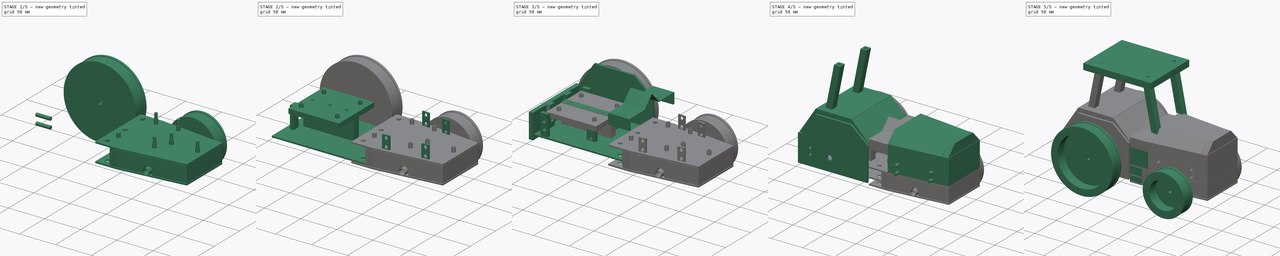
[diagram: build sequence overview — one tinted view per stage of 5, left to right]
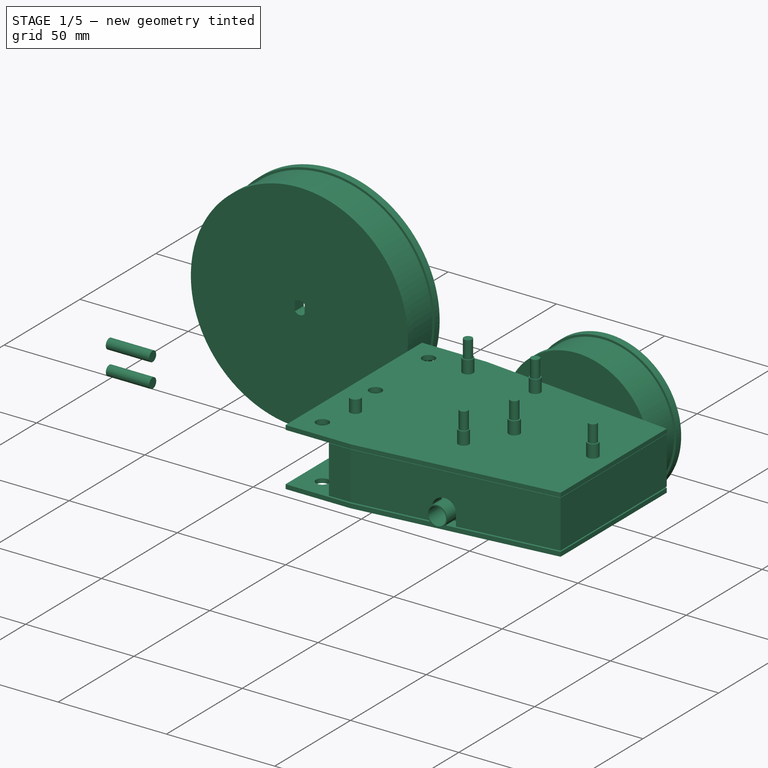
[diagram: stage 1 of 5 — iso view after this stage's code; geometry added in this stage tinted green]
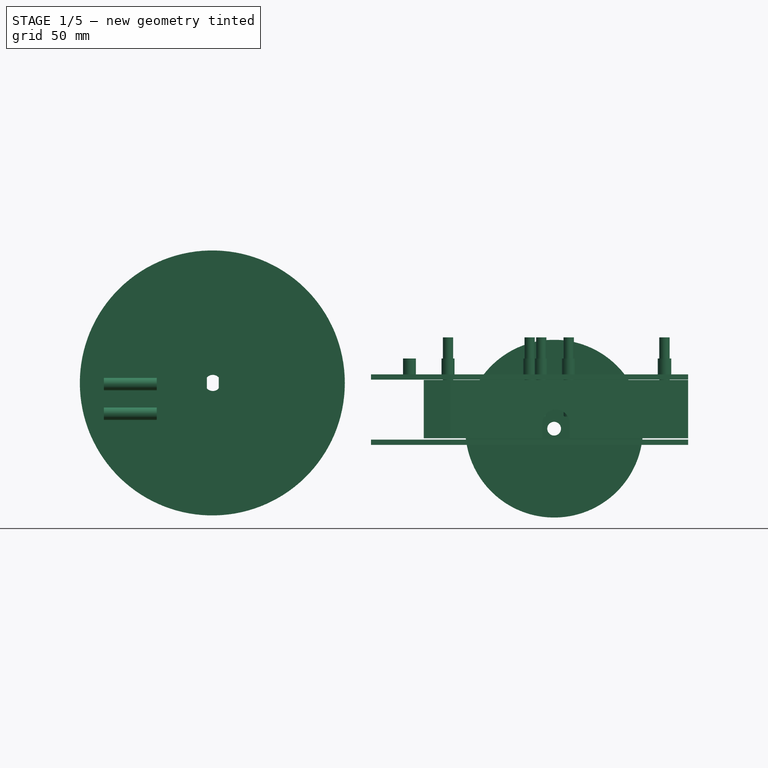
[diagram: stage 1 of 5 — front view after this stage's code; geometry added in this stage tinted green]
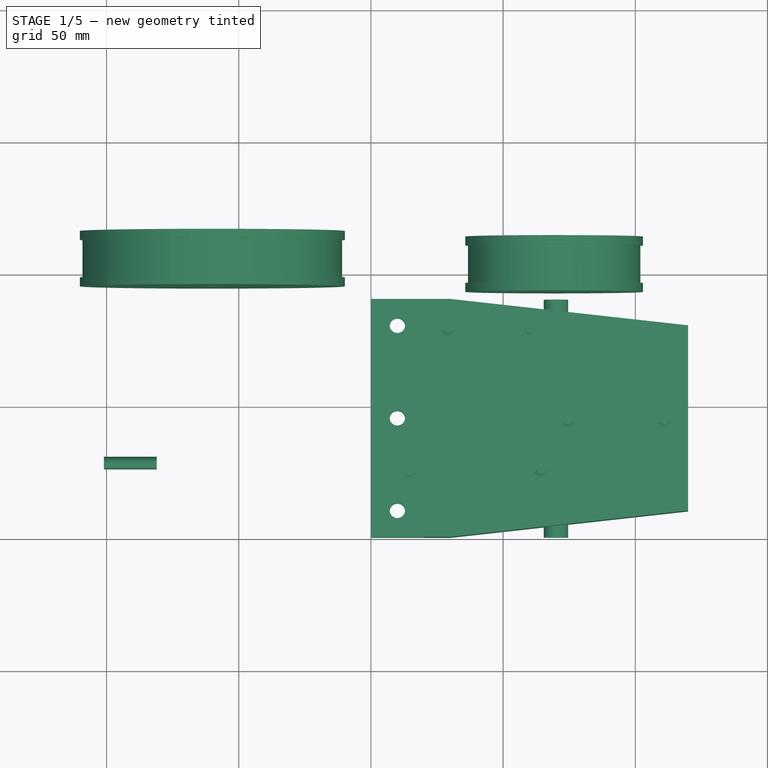
[diagram: stage 1 of 5 — top view after this stage's code; geometry added in this stage tinted green]
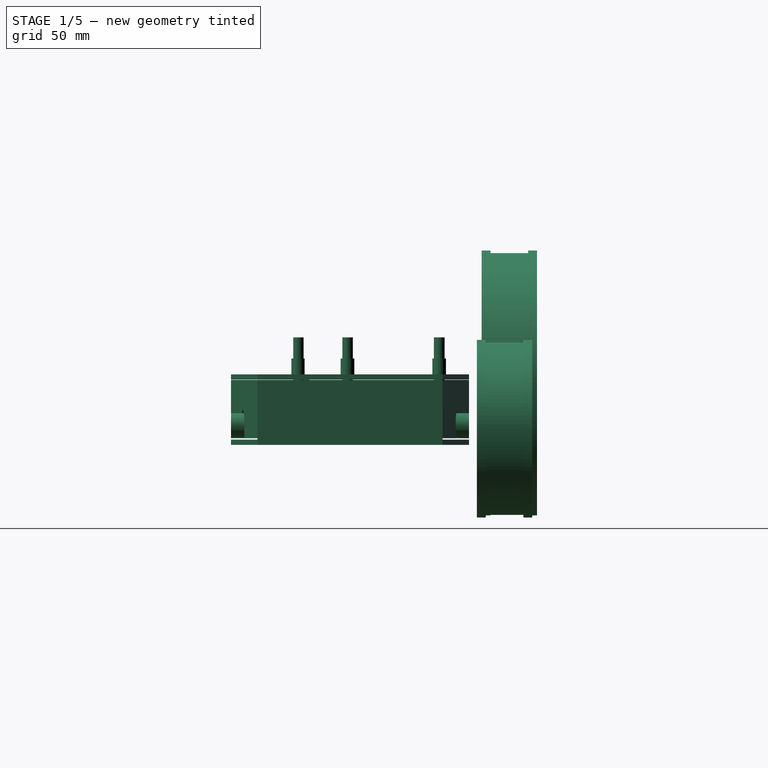
[diagram: stage 1 of 5 — right view after this stage's code; geometry added in this stage tinted green]
FCSTD DOCUMENT  (FreeCAD 0.20R29410 (Git))
Label: Tractor Completado
License: Creative Commons Attribution-ShareAlike
LicenseURL: http://creativecommons.org/licenses/by-sa/4.0/
objects: Part::Extrusion×98, Sketcher::SketchObject×93, Part::Cut×63, Part::MultiFuse×30, Part::Revolution×4
note: 288 computed .brp shape members not serialized (recipe doc carries the construction recipe); baked Part::Feature solids carry a one-line shape summary decoded from their .brp

FEATURE [Sketcher::SketchObject] Sketch003
  FullyConstrained = false
  MapMode = 5
  Placement = pos=(0,0,10) rot=(0,0,1;0rad)
  sketch-geometry (4):
    g0: Circle CenterX=10 CenterY=80.0167 CenterZ=0 NormalX=0 NormalY=0 NormalZ=1 AngleXU=0 Radius=2.9
    g1: Circle CenterX=10 CenterY=45.0083 CenterZ=0 NormalX=0 NormalY=0 NormalZ=1 AngleXU=0 Radius=2.9
    g2: Circle CenterX=10 CenterY=10 CenterZ=0 NormalX=0 NormalY=0 NormalZ=1 AngleXU=0 Radius=2.9
    g3: LineSegment StartX=10 StartY=10 StartZ=0 EndX=10 EndY=80.0167 EndZ=0
  constraints (7):
    c: Coincident(g3,g2)
    c: Coincident(g3,g0)
    c: Vertical(g3)
    c: Symmetric(g3,g3,g1)
    c: Diameter(g0) = 5.8
    c: Equal(g0,g1)
    c: Equal(g1,g2)
FEATURE [Part::Extrusion] Extrude052  label="Tornillos053"
  Base = -> Sketch003
  Dir = (0,0,1)
  DirMode = 2
  FaceMakerClass = Part::FaceMakerBullseye
  LengthFwd = 50
  LengthRev = 0
  Placement = pos=(0,0,-21) rot=(0,0,1;0rad)
  Solid = true
  Symmetric = false
FEATURE [Sketcher::SketchObject] Sketch017
  FullyConstrained = false
  MapMode = 5
  Placement = pos=(0,0,30) rot=(0,0,1;0rad)
  sketch-geometry (6):
    g0: Circle CenterX=74.7921 CenterY=44.0089 CenterZ=0 NormalX=0 NormalY=0 NormalZ=1 AngleXU=0 Radius=2.55289
    g1: Circle CenterX=111.059 CenterY=44.0927 CenterZ=0 NormalX=0 NormalY=0 NormalZ=1 AngleXU=0 Radius=2.55289
    g2: Circle CenterX=60.0507 CenterY=78.8522 CenterZ=0 NormalX=0 NormalY=0 NormalZ=1 AngleXU=0 Radius=2.4438
    g3: Circle CenterX=29.1441 CenterY=78.6009 CenterZ=0 NormalX=0 NormalY=0 NormalZ=1 AngleXU=0 Radius=2.4438
    g4: Circle CenterX=14.5702 CenterY=25.2471 CenterZ=0 NormalX=0 NormalY=0 NormalZ=1 AngleXU=0 Radius=2.4438
    g5: Circle CenterX=64.4061 CenterY=25.4146 CenterZ=0 NormalX=0 NormalY=0 NormalZ=1 AngleXU=0 Radius=2.4438
  constraints (4):
    c: Equal(g0,g1)
    c: Equal(g2,g3)
    c: Equal(g3,g4)
    c: Equal(g4,g5)
FEATURE [Part::Extrusion] Extrude192  label="Base tornillos001"
  Base = -> Sketch017
  Dir = (0,0,1)
  DirMode = 2
  FaceMakerClass = Part::FaceMakerBullseye
  LengthFwd = 7
  LengthRev = 0
  Placement = pos=(0,0,-1) rot=(0,0,1;0rad)
  Solid = true
  Symmetric = false
FEATURE [Sketcher::SketchObject] Sketch018
  FullyConstrained = false
  MapMode = 5
  Placement = pos=(0,0,36) rot=(0,0,1;0rad)
  sketch-geometry (5):
    g0: Circle CenterX=74.7892 CenterY=44.0624 CenterZ=0 NormalX=0 NormalY=0 NormalZ=1 AngleXU=0 Radius=1.95541
    g1: Circle CenterX=111.024 CenterY=44.1108 CenterZ=0 NormalX=0 NormalY=0 NormalZ=1 AngleXU=0 Radius=1.95541
    g2: Circle CenterX=29.1598 CenterY=78.6822 CenterZ=0 NormalX=0 NormalY=0 NormalZ=1 AngleXU=0 Radius=1.945
    g3: Circle CenterX=60.0393 CenterY=78.8506 CenterZ=0 NormalX=0 NormalY=0 NormalZ=1 AngleXU=0 Radius=1.94571
    g4: Circle CenterX=64.4121 CenterY=25.4887 CenterZ=0 NormalX=0 NormalY=0 NormalZ=1 AngleXU=0 Radius=1.94571
  constraints (3):
    c: Equal(g0,g1)
    c: Equal(g3,g4)
    c: Diameter(g2) = 3.89
FEATURE [Part::Extrusion] Extrude054
  Base = -> Sketch018
  Dir = (0,0,1)
  DirMode = 2
  FaceMakerClass = Part::FaceMakerBullseye
  LengthFwd = 30
  LengthRev = 0
  Placement = pos=(0,0,-22) rot=(0,0,1;0rad)
  Solid = true
  Symmetric = false
FEATURE [Sketcher::SketchObject] Sketch047
  FullyConstrained = false
  Placement = pos=(0,0,0) rot=(1,0,0;1.5708rad)
  sketch-geometry (4):
    g0: LineSegment StartX=-140 StartY=10 StartZ=0 EndX=-130 EndY=10 EndZ=0
    g1: LineSegment StartX=-130 StartY=10 StartZ=0 EndX=-130 EndY=30 EndZ=0
    g2: LineSegment StartX=-130 StartY=30 StartZ=0 EndX=-140 EndY=30 EndZ=0
    g3: LineSegment StartX=-140 StartY=30 StartZ=0 EndX=-140 EndY=10 EndZ=0
  constraints (8):
    c: Coincident(g0,g1)
    c: Coincident(g1,g2)
    c: Coincident(g2,g3)
    c: Coincident(g3,g0)
    c: Horizontal(g0)
    c: Horizontal(g2)
    c: Vertical(g1)
    c: Vertical(g3)
FEATURE [Part::Extrusion] Extrude049  label="Soporte008"
  Base = -> Sketch047
  Dir = (0,-1,2e-16)
  DirMode = 2
  FaceMakerClass = Part::FaceMakerBullseye
  LengthFwd = 2
  LengthRev = 0
  Placement = pos=(-96,-107,0) rot=(0,0,-1;1.5708rad)
  Solid = true
  Symmetric = false
FEATURE [Sketcher::SketchObject] Sketch048
  FullyConstrained = false
  MapMode = 5
  Placement = pos=(-98,-107,4e-16) rot=(0.57735,-0.57735,-0.57735;2.0944rad)
  Support = -> [Extrude049]
  sketch-geometry (4):
    g0: LineSegment StartX=-140.016 StartY=26.302 StartZ=0 EndX=-130.004 EndY=26.302 EndZ=0
    g1: Circle CenterX=-135.01 CenterY=26.302 CenterZ=0 NormalX=0 NormalY=0 NormalZ=1 AngleXU=0 Radius=2.34
    g2: LineSegment StartX=-140.095 StartY=15.1162 StartZ=0 EndX=-130 EndY=15.1162 EndZ=0
    g3: Circle CenterX=-135.047 CenterY=15.1162 CenterZ=0 NormalX=0 NormalY=0 NormalZ=1 AngleXU=0 Radius=2.34
  constraints (6):
    c: Horizontal(g0)
    c: Symmetric(g0,g0,g1)
    c: Horizontal(g2)
    c: Symmetric(g2,g2,g3)
    c: Equal(g1,g3)
    c: Diameter(g3) = 4.68
FEATURE [Part::Extrusion] Extrude050  label="Tornillos010"
  Base = -> Sketch048
  Dir = (-1,-2e-16,2e-16)
  DirMode = 2
  FaceMakerClass = Part::FaceMakerBullseye
  LengthFwd = 20
  LengthRev = 0
  Placement = pos=(17,0,0) rot=(0,0,1;0rad)
  Solid = true
  Symmetric = false
FEATURE [Sketcher::SketchObject] Sketch173
  FullyConstrained = false
  sketch-geometry (6):
    g0: LineSegment StartX=0 StartY=0 StartZ=0 EndX=30 EndY=0 EndZ=0
    g1: LineSegment StartX=30 StartY=0 StartZ=0 EndX=120 EndY=10 EndZ=0
    g2: LineSegment StartX=0 StartY=0 StartZ=0 EndX=0 EndY=90 EndZ=0
    g3: LineSegment StartX=0 StartY=90 StartZ=0 EndX=30 EndY=90 EndZ=0
    g4: LineSegment StartX=30 StartY=90 StartZ=0 EndX=120 EndY=80 EndZ=0
    g5: LineSegment StartX=120 StartY=80 StartZ=0 EndX=120 EndY=10 EndZ=0
  constraints (11):
    c: Coincident(g-1,g0)
    c: PointOnObject(g0,g-1)
    c: Coincident(g0,g1)
    c: Coincident(g0,g2)
    c: PointOnObject(g2,g-2)
    c: Coincident(g2,g3)
    c: Horizontal(g3)
    c: Coincident(g3,g4)
    c: Coincident(g4,g5)
    c: Coincident(g5,g1)
    c: Vertical(g5)
FEATURE [Part::Extrusion] Extrude191  label="Base delantera alta002"
  Base = -> Sketch173
  Dir = (0,0,1)
  DirMode = 2
  FaceMakerClass = Part::FaceMakerBullseye
  LengthFwd = 2
  LengthRev = 0
  Placement = pos=(0,0,28) rot=(0,0,1;0rad)
  Solid = true
  Symmetric = false
FEATURE [Part::Cut] Cut116
  Base = -> Extrude191
  Refine = true
  Tool = -> Extrude052
FEATURE [Part::MultiFuse] Fusion063
  Refine = true
  Shapes = -> [Cut116,Extrude192]
FEATURE [Sketcher::SketchObject] Sketch175
  FullyConstrained = false
  sketch-geometry (6):
    g0: LineSegment StartX=0 StartY=0 StartZ=0 EndX=30 EndY=0 EndZ=0
    g1: LineSegment StartX=30 StartY=0 StartZ=0 EndX=120 EndY=10 EndZ=0
    g2: LineSegment StartX=0 StartY=0 StartZ=0 EndX=0 EndY=90 EndZ=0
    g3: LineSegment StartX=0 StartY=90 StartZ=0 EndX=30 EndY=90 EndZ=0
    g4: LineSegment StartX=30 StartY=90 StartZ=0 EndX=120 EndY=80 EndZ=0
    g5: LineSegment StartX=120 StartY=80 StartZ=0 EndX=120 EndY=10 EndZ=0
  constraints (11):
    c: Coincident(g-1,g0)
    c: PointOnObject(g0,g-1)
    c: Coincident(g0,g1)
    c: Coincident(g0,g2)
    c: PointOnObject(g2,g-2)
    c: Coincident(g2,g3)
    c: Horizontal(g3)
    c: Coincident(g3,g4)
    c: Coincident(g4,g5)
    c: Coincident(g5,g1)
    c: Vertical(g5)
FEATURE [Part::Extrusion] Extrude002  label="Base delantera baja"
  Base = -> Sketch175
  Dir = (0,0,1)
  DirMode = 2
  FaceMakerClass = Part::FaceMakerBullseye
  LengthFwd = 2
  LengthRev = 0
  Solid = true
  Symmetric = false
FEATURE [Sketcher::SketchObject] Sketch176
  FullyConstrained = false
  MapMode = 5
  Placement = pos=(0,0,2) rot=(0,0,1;0rad)
  Support = -> [Extrude002]
  sketch-geometry (4):
    g0: Circle CenterX=10 CenterY=80.0167 CenterZ=0 NormalX=0 NormalY=0 NormalZ=1 AngleXU=0 Radius=2.9
    g1: Circle CenterX=10 CenterY=45.0083 CenterZ=0 NormalX=0 NormalY=0 NormalZ=1 AngleXU=0 Radius=2.9
    g2: Circle CenterX=10 CenterY=10 CenterZ=0 NormalX=0 NormalY=0 NormalZ=1 AngleXU=0 Radius=2.9
    g3: LineSegment StartX=10 StartY=10 StartZ=0 EndX=10 EndY=80.0167 EndZ=0
  constraints (7):
    c: Coincident(g3,g2)
    c: Coincident(g3,g0)
    c: Vertical(g3)
    c: Symmetric(g3,g3,g1)
    c: Diameter(g0) = 5.8
    c: Equal(g0,g1)
    c: Equal(g1,g2)
FEATURE [Part::Extrusion] Extrude005  label="Tornillos002"
  Base = -> Sketch176
  Dir = (0,0,1)
  DirMode = 2
  FaceMakerClass = Part::FaceMakerBullseye
  LengthFwd = 50
  LengthRev = 0
  Placement = pos=(0,0,-21) rot=(0,0,1;0rad)
  Solid = true
  Symmetric = false
FEATURE [Part::Cut] Cut002  label="Base delantera baja001"
  Base = -> Extrude002
  Placement = pos=(0,0,-12) rot=(0,0,1;0rad)
  Refine = true
  Tool = -> Extrude005
FEATURE [Sketcher::SketchObject] Sketch012
  FullyConstrained = false
  Placement = pos=(0,0,0) rot=(1,0,0;1.5708rad)
  sketch-geometry (2):
    g0: LineSegment StartX=70 StartY=-30 StartZ=0 EndX=70 EndY=3.62 EndZ=0
    g1: Circle CenterX=70 CenterY=3.62 CenterZ=0 NormalX=0 NormalY=0 NormalZ=1 AngleXU=0 Radius=4.61234
  constraints (3):
    c: Vertical(g0)
    c: DistanceY(g0,g0) = 33.62
    c: Coincident(g1,g0)
FEATURE [Part::Extrusion] Extrude011
  Base = -> Sketch012
  Dir = (0,-1,2e-16)
  DirMode = 2
  FaceMakerClass = Part::FaceMakerBullseye
  LengthFwd = 90
  LengthRev = 0
  Placement = pos=(0,90,0) rot=(0,0,1;0rad)
  Solid = true
  Symmetric = false
FEATURE [Sketcher::SketchObject] Sketch013
  FullyConstrained = false
  Placement = pos=(0,0,0) rot=(1,0,0;1.5708rad)
  sketch-geometry (2):
    g0: LineSegment StartX=70 StartY=-30.0707 StartZ=0 EndX=70 EndY=3.54929 EndZ=0
    g1: Circle CenterX=70 CenterY=3.54929 CenterZ=0 NormalX=0 NormalY=0 NormalZ=1 AngleXU=0 Radius=4.10386
  constraints (3):
    c: Vertical(g0)
    c: DistanceY(g0,g0) = 33.62
    c: Coincident(g1,g0)
FEATURE [Part::Extrusion] Extrude012
  Base = -> Sketch013
  Dir = (0,-1,2e-16)
  DirMode = 2
  FaceMakerClass = Part::FaceMakerBullseye
  LengthFwd = 120
  LengthRev = 0
  Placement = pos=(0,105,0) rot=(0,0,1;0rad)
  Solid = true
  Symmetric = false
FEATURE [Part::Cut] Cut004  label="Tubo"
  Base = -> Extrude011
  Refine = true
  Tool = -> Extrude012
FEATURE [Sketcher::SketchObject] Sketch031
  FullyConstrained = false
  Placement = pos=(0,0,0) rot=(1,0,0;1.5708rad)
  sketch-geometry (4):
    g0: LineSegment StartX=68.2422 StartY=-0.589183 StartZ=0 EndX=71.6919 EndY=-0.589183 EndZ=0
    g1: LineSegment StartX=71.6919 StartY=-0.589183 StartZ=0 EndX=71.6919 EndY=-2.35709 EndZ=0
    g2: LineSegment StartX=71.6919 StartY=-2.35709 StartZ=0 EndX=68.2422 EndY=-2.35709 EndZ=0
    g3: LineSegment StartX=68.2422 StartY=-2.35709 StartZ=0 EndX=68.2422 EndY=-0.589183 EndZ=0
  constraints (8):
    c: Horizontal(g0)
    c: Coincident(g0,g1)
    c: Vertical(g1)
    c: Coincident(g1,g2)
    c: Horizontal(g2)
    c: Coincident(g2,g3)
    c: Coincident(g3,g0)
    c: Vertical(g3)
FEATURE [Part::Extrusion] Extrude033
  Base = -> Sketch031
  Dir = (0,-1,2e-16)
  DirMode = 2
  FaceMakerClass = Part::FaceMakerBullseye
  LengthFwd = 70
  LengthRev = 0
  Placement = pos=(0,80,0) rot=(0,0,1;0rad)
  Solid = true
  Symmetric = false
FEATURE [Part::MultiFuse] Fusion066
  Placement = pos=(0,0,-8.2) rot=(0,0,1;0rad)
  Refine = true
  Shapes = -> [Extrude033,Cut004]
FEATURE [Sketcher::SketchObject] Sketch041
  FullyConstrained = false
  sketch-geometry (12):
    g0: LineSegment StartX=30 StartY=0 StartZ=0 EndX=120 EndY=10 EndZ=0
    g1: LineSegment StartX=120 StartY=10 StartZ=0 EndX=120 EndY=80 EndZ=0
    g2: LineSegment StartX=120 StartY=80 StartZ=0 EndX=30 EndY=90 EndZ=0
    g3: LineSegment StartX=30 StartY=84 StartZ=0 EndX=114 EndY=74 EndZ=0
    g4: LineSegment StartX=114 StartY=74 StartZ=0 EndX=114 EndY=16 EndZ=0
    g5: LineSegment StartX=114 StartY=16 StartZ=0 EndX=30.2268 EndY=6 EndZ=0
    g6: LineSegment StartX=30 StartY=90 StartZ=0 EndX=20 EndY=90 EndZ=0
    g7: LineSegment StartX=20 StartY=90 StartZ=0 EndX=20 EndY=84 EndZ=0
    g8: LineSegment StartX=20 StartY=84 StartZ=0 EndX=30 EndY=84 EndZ=0
    g9: LineSegment StartX=30.2268 StartY=6 StartZ=0 EndX=20 EndY=6 EndZ=0
    g10: LineSegment StartX=20 StartY=6 StartZ=0 EndX=20 EndY=0 EndZ=0
    g11: LineSegment StartX=20 StartY=0 StartZ=0 EndX=30 EndY=0 EndZ=0
  constraints (20):
    c: PointOnObject(g0,g-1)
    c: Coincident(g0,g1)
    c: Vertical(g1)
    c: Coincident(g1,g2)
    c: Coincident(g3,g4)
    c: Vertical(g4)
    c: Coincident(g4,g5)
    c: Coincident(g2,g6)
    c: Horizontal(g6)
    c: Coincident(g6,g7)
    c: Vertical(g7)
    c: Coincident(g7,g8)
    c: Horizontal(g8)
    c: Coincident(g5,g9)
    c: Horizontal(g9)
    c: Coincident(g9,g10)
    c: PointOnObject(g10,g-1)
    c: Vertical(g10)
    c: Coincident(g10,g11)
    c: Coincident(g11,g0)
FEATURE [Part::Extrusion] Extrude044
  Base = -> Sketch041
  Dir = (0,0,1)
  DirMode = 2
  FaceMakerClass = Part::FaceMakerBullseye
  LengthFwd = 22
  LengthRev = 0
  Placement = pos=(0,0,-2) rot=(0,0,1;0rad)
  Solid = true
  Symmetric = false
FEATURE [Sketcher::SketchObject] Sketch042
  FullyConstrained = false
  Placement = pos=(0,0,0) rot=(1,0,0;1.5708rad)
  sketch-geometry (2):
    g0: LineSegment StartX=70 StartY=-30 StartZ=0 EndX=70 EndY=3.62 EndZ=0
    g1: Circle CenterX=70 CenterY=3.62 CenterZ=0 NormalX=0 NormalY=0 NormalZ=1 AngleXU=0 Radius=5.17746
  constraints (3):
    c: Vertical(g0)
    c: DistanceY(g0,g0) = 33.62
    c: Coincident(g1,g0)
FEATURE [Part::Extrusion] Extrude045
  Base = -> Sketch042
  Dir = (0,-1,2e-16)
  DirMode = 2
  FaceMakerClass = Part::FaceMakerBullseye
  LengthFwd = 800
  LengthRev = 0
  Placement = pos=(0,293,0) rot=(0,0,1;0rad)
  Solid = true
  Symmetric = false
FEATURE [Part::Cut] Cut014  label="Tapa delantera baja"
  Base = -> Extrude044
  Placement = pos=(0,0,-7.9) rot=(0,0,1;0rad)
  Refine = true
  Tool = -> Extrude045
FEATURE [Sketcher::SketchObject] Sketch174
  FullyConstrained = false
  MapMode = 5
  Placement = pos=(0,0,12.1) rot=(0,0,1;0rad)
  Support = -> [Cut014]
  sketch-geometry (7):
    g0: Circle CenterX=30 CenterY=86.9634 CenterZ=0 NormalX=0 NormalY=0 NormalZ=1 AngleXU=0 Radius=1.6238
    g1: Circle CenterX=30 CenterY=3.25244 CenterZ=0 NormalX=0 NormalY=0 NormalZ=1 AngleXU=0 Radius=1.6238
    g2: Circle CenterX=95.1633 CenterY=10 CenterZ=0 NormalX=0 NormalY=0 NormalZ=1 AngleXU=0 Radius=1.6238
    g3: Circle CenterX=94.9498 CenterY=80 CenterZ=0 NormalX=0 NormalY=0 NormalZ=1 AngleXU=0 Radius=1.6238
    g4: Circle CenterX=117.101 CenterY=20 CenterZ=0 NormalX=0 NormalY=0 NormalZ=1 AngleXU=0 Radius=1.6238
    g5: Circle CenterX=117.031 CenterY=70 CenterZ=0 NormalX=0 NormalY=0 NormalZ=1 AngleXU=0 Radius=1.6238
    g6: Circle CenterX=117.101 CenterY=44.4436 CenterZ=0 NormalX=0 NormalY=0 NormalZ=1 AngleXU=0 Radius=1.6238
  constraints (6):
    c: Equal(g0,g3)
    c: Equal(g3,g5)
    c: Equal(g5,g6)
    c: Equal(g6,g4)
    c: Equal(g4,g2)
    c: Equal(g2,g1)
FEATURE [Part::Extrusion] Extrude193
  Base = -> Sketch174
  Dir = (0,0,1)
  DirMode = 2
  FaceMakerClass = Part::FaceMakerBullseye
  LengthFwd = 10
  LengthRev = 0
  Placement = pos=(0,0,-27.7) rot=(0,0,1;0rad)
  Solid = true
  Symmetric = false
FEATURE [Part::Cut] Cut122
  Base = -> Cut002
  Refine = true
  Tool = -> Extrude193
FEATURE [Part::MultiFuse] Fusion065  label="Base"
  Placement = pos=(0,0,15.3) rot=(0,0,1;0rad)
  Refine = true
  Shapes = -> [Cut122,Fusion066]
FEATURE [Sketcher::SketchObject] Sketch177
  FullyConstrained = false
  sketch-geometry (12):
    g0: LineSegment StartX=30 StartY=0 StartZ=0 EndX=120 EndY=10 EndZ=0
    g1: LineSegment StartX=120 StartY=10 StartZ=0 EndX=120 EndY=80 EndZ=0
    g2: LineSegment StartX=120 StartY=80 StartZ=0 EndX=30 EndY=90 EndZ=0
    g3: LineSegment StartX=30 StartY=84 StartZ=0 EndX=114 EndY=74 EndZ=0
    g4: LineSegment StartX=114 StartY=74 StartZ=0 EndX=114 EndY=16 EndZ=0
    g5: LineSegment StartX=114 StartY=16 StartZ=0 EndX=30.2268 EndY=6 EndZ=0
    g6: LineSegment StartX=30 StartY=90 StartZ=0 EndX=20 EndY=90 EndZ=0
    g7: LineSegment StartX=20 StartY=90 StartZ=0 EndX=20 EndY=84 EndZ=0
    g8: LineSegment StartX=20 StartY=84 StartZ=0 EndX=30 EndY=84 EndZ=0
    g9: LineSegment StartX=30.2268 StartY=6 StartZ=0 EndX=20 EndY=6 EndZ=0
    g10: LineSegment StartX=20 StartY=6 StartZ=0 EndX=20 EndY=0 EndZ=0
    g11: LineSegment StartX=20 StartY=0 StartZ=0 EndX=30 EndY=0 EndZ=0
  constraints (20):
    c: PointOnObject(g0,g-1)
    c: Coincident(g0,g1)
    c: Vertical(g1)
    c: Coincident(g1,g2)
    c: Coincident(g3,g4)
    c: Vertical(g4)
    c: Coincident(g4,g5)
    c: Coincident(g2,g6)
    c: Horizontal(g6)
    c: Coincident(g6,g7)
    c: Vertical(g7)
    c: Coincident(g7,g8)
    c: Horizontal(g8)
    c: Coincident(g5,g9)
    c: Horizontal(g9)
    c: Coincident(g9,g10)
    c: PointOnObject(g10,g-1)
    c: Vertical(g10)
    c: Coincident(g10,g11)
    c: Coincident(g11,g0)
FEATURE [Part::Extrusion] Extrude194
  Base = -> Sketch177
  Dir = (0,0,1)
  DirMode = 2
  FaceMakerClass = Part::FaceMakerBullseye
  LengthFwd = 22
  LengthRev = 0
  Placement = pos=(0,0,-2) rot=(0,0,1;0rad)
  Solid = true
  Symmetric = false
FEATURE [Sketcher::SketchObject] Sketch178
  FullyConstrained = false
  Placement = pos=(0,0,0) rot=(1,0,0;1.5708rad)
  sketch-geometry (2):
    g0: LineSegment StartX=70 StartY=-30 StartZ=0 EndX=70 EndY=3.62 EndZ=0
    g1: Circle CenterX=70 CenterY=3.62 CenterZ=0 NormalX=0 NormalY=0 NormalZ=1 AngleXU=0 Radius=5.17746
  constraints (3):
    c: Vertical(g0)
    c: DistanceY(g0,g0) = 33.62
    c: Coincident(g1,g0)
FEATURE [Part::Extrusion] Extrude195
  Base = -> Sketch178
  Dir = (0,-1,2e-16)
  DirMode = 2
  FaceMakerClass = Part::FaceMakerBullseye
  LengthFwd = 800
  LengthRev = 0
  Placement = pos=(0,293,0) rot=(0,0,1;0rad)
  Solid = true
  Symmetric = false
FEATURE [Part::Cut] Cut123  label="Tapa delantera baja001"
  Base = -> Extrude194
  Placement = pos=(0,0,-7.9) rot=(0,0,1;0rad)
  Refine = true
  Tool = -> Extrude195
FEATURE [Sketcher::SketchObject] Sketch179
  FullyConstrained = false
  MapMode = 5
  Placement = pos=(0,0,12.1) rot=(0,0,1;0rad)
  sketch-geometry (7):
    g0: Circle CenterX=30 CenterY=86.9634 CenterZ=0 NormalX=0 NormalY=0 NormalZ=1 AngleXU=0 Radius=1.6238
    g1: Circle CenterX=30 CenterY=3.25244 CenterZ=0 NormalX=0 NormalY=0 NormalZ=1 AngleXU=0 Radius=1.6238
    g2: Circle CenterX=95.1633 CenterY=10 CenterZ=0 NormalX=0 NormalY=0 NormalZ=1 AngleXU=0 Radius=1.6238
    g3: Circle CenterX=94.9498 CenterY=80 CenterZ=0 NormalX=0 NormalY=0 NormalZ=1 AngleXU=0 Radius=1.6238
    g4: Circle CenterX=117.101 CenterY=20 CenterZ=0 NormalX=0 NormalY=0 NormalZ=1 AngleXU=0 Radius=1.6238
    g5: Circle CenterX=117.031 CenterY=70 CenterZ=0 NormalX=0 NormalY=0 NormalZ=1 AngleXU=0 Radius=1.6238
    g6: Circle CenterX=117.101 CenterY=44.4436 CenterZ=0 NormalX=0 NormalY=0 NormalZ=1 AngleXU=0 Radius=1.6238
  constraints (6):
    c: Equal(g0,g3)
    c: Equal(g3,g5)
    c: Equal(g5,g6)
    c: Equal(g6,g4)
    c: Equal(g4,g2)
    c: Equal(g2,g1)
FEATURE [Part::Extrusion] Extrude196
  Base = -> Sketch179
  Dir = (0,0,1)
  DirMode = 2
  FaceMakerClass = Part::FaceMakerBullseye
  LengthFwd = 10
  LengthRev = 0
  Placement = pos=(0,0,-24.5) rot=(0,0,1;0rad)
  Solid = true
  Symmetric = false
FEATURE [Part::Cut] Cut015
  Base = -> Cut123
  Refine = true
  Tool = -> Extrude196
FEATURE [Sketcher::SketchObject] Sketch044
  FullyConstrained = false
  Placement = pos=(0,0,0) rot=(1,0,0;1.5708rad)
  sketch-geometry (5):
    g0: LineSegment StartX=75.1954 StartY=-10.035 StartZ=0 EndX=75.1954 EndY=-4.64279 EndZ=0
    g1: LineSegment StartX=75.1954 StartY=-4.64279 StartZ=0 EndX=64.8046 EndY=-4.64279 EndZ=0
    g2: LineSegment StartX=64.8046 StartY=-4.64279 StartZ=0 EndX=64.8046 EndY=-10.035 EndZ=0
    g3: LineSegment StartX=64.8046 StartY=-10.035 StartZ=0 EndX=75.1954 EndY=-10.035 EndZ=0
    g4: GeomPoint X=70 Y=-4.64279 Z=0
  constraints (9):
    c: Vertical(g0)
    c: Coincident(g0,g1)
    c: Horizontal(g1)
    c: Coincident(g1,g2)
    c: Vertical(g2)
    c: Coincident(g2,g3)
    c: Coincident(g3,g0)
    c: Horizontal(g3)
    c: Symmetric(g1,g1,g4)
FEATURE [Part::Extrusion] Extrude047
  Base = -> Sketch044
  Dir = (0,-1,-6e-16)
  DirMode = 2
  FaceMakerClass = Part::FaceMakerBullseye
  LengthFwd = 100
  LengthRev = 0
  Placement = pos=(0,96.2,0) rot=(0,0,1;0rad)
  Solid = true
  Symmetric = false
FEATURE [Part::Cut] Cut016  label="Carvasa"
  Base = -> Cut015
  Placement = pos=(0,0,15.75) rot=(0,0,1;0rad)
  Refine = true
  Tool = -> Extrude047
FEATURE [Sketcher::SketchObject] Sketch180
  FullyConstrained = false
  Placement = pos=(0,0,0) rot=(1,0,0;1.5708rad)
  sketch-geometry (8):
    g0: LineSegment StartX=0 StartY=0 StartZ=0 EndX=50.12 EndY=0 EndZ=0
    g1: LineSegment StartX=50.12 StartY=0 StartZ=0 EndX=50.12 EndY=3.35549 EndZ=0
    g2: LineSegment StartX=0 StartY=0 StartZ=0 EndX=0 EndY=20.92 EndZ=0
    g3: LineSegment StartX=0 StartY=20.92 StartZ=0 EndX=50.12 EndY=20.92 EndZ=0
    g4: LineSegment StartX=50.12 StartY=20.92 StartZ=0 EndX=50.12 EndY=17.5645 EndZ=0
    g5: LineSegment StartX=50.12 StartY=17.5645 StartZ=0 EndX=49.1 EndY=17.5645 EndZ=0
    g6: LineSegment StartX=50.12 StartY=3.35549 StartZ=0 EndX=49.1 EndY=3.35549 EndZ=0
    g7: LineSegment StartX=49.1 StartY=3.35549 StartZ=0 EndX=49.1 EndY=17.5645 EndZ=0
  constraints (22):
    c: Coincident(g-1,g0)
    c: PointOnObject(g0,g-1)
    c: Coincident(g0,g1)
    c: Vertical(g1)
    c: DistanceX(g0,g0) = 50.12
    c: Coincident(g0,g2)
    c: PointOnObject(g2,g-2)
    c: Coincident(g2,g3)
    c: Horizontal(g3)
    c: Equal(g0,g3)
    c: Coincident(g4,g3)
    c: Vertical(g4)
    c: Equal(g1,g4)
    c: Coincident(g5,g4)
    c: Horizontal(g5)
    c: Coincident(g6,g1)
    c: Horizontal(g6)
    c: Coincident(g7,g6)
    c: Coincident(g7,g5)
    c: Vertical(g7)
    c: DistanceY(g2,g2) = 20.92
    c: DistanceX(g5,g5) = 1.02
FEATURE [Part::Revolution] Revolve004
  Angle = 360
  Axis = (0,0,1)
  Base = (0,0,0)
  FaceMakerClass = Part::FaceMakerBullseye
  Solid = true
  Source = -> Sketch180
  Symmetric = false
FEATURE [Sketcher::SketchObject] Sketch181
  FullyConstrained = false
  MapMode = 5
  Placement = pos=(0,0,20.92) rot=(0,0,1;0rad)
  Support = -> [Revolve004]
  sketch-geometry (1):
    g0: Circle CenterX=0 CenterY=0 CenterZ=0 NormalX=0 NormalY=0 NormalZ=1 AngleXU=0 Radius=39.5662
  constraints (1):
    c: Coincident(g0,g-1)
FEATURE [Part::Extrusion] Extrude197
  Base = -> Sketch181
  Dir = (0,0,1)
  DirMode = 2
  FaceMakerClass = Part::FaceMakerBullseye
  LengthFwd = 20
  LengthRev = 0
  Placement = pos=(0,0,-15.1) rot=(0,0,1;0rad)
  Solid = true
  Symmetric = false
FEATURE [Part::Cut] Cut125
  Base = -> Revolve004
  Refine = true
  Tool = -> Extrude197
FEATURE [Sketcher::SketchObject] Sketch182
  FullyConstrained = false
  MapMode = 5
  Placement = pos=(-4e-15,-17.4,11) rot=(0,0.707107,0.707107;3.14159rad)
  sketch-geometry (9):
    g0: LineSegment StartX=-2.055 StartY=-8.92183 StartZ=0 EndX=2.055 EndY=-8.92183 EndZ=0
    g1: LineSegment StartX=2.055 StartY=-8.92183 StartZ=0 EndX=2.055 EndY=-13.4318 EndZ=0
    g2: LineSegment StartX=2.055 StartY=-13.4318 StartZ=0 EndX=-2.055 EndY=-13.4318 EndZ=0
    g3: LineSegment StartX=-2.055 StartY=-13.4318 StartZ=0 EndX=-2.055 EndY=-8.92183 EndZ=0
    g4: LineSegment StartX=-2.055 StartY=-8.92183 StartZ=0 EndX=2.055 EndY=-13.4318 EndZ=0
    g5: LineSegment StartX=2.055 StartY=-8.92183 StartZ=0 EndX=-2.055 EndY=-13.4318 EndZ=0
    g6: GeomPoint X=-1.34498e-11 Y=-11.1768 Z=0
    g7: ArcOfCircle CenterX=-1.34498e-11 CenterY=-11.1768 CenterZ=0 NormalX=0 NormalY=0 NormalZ=1 AngleXU=0 Radius=3.05091 StartAngle=2.30982 EndAngle=3.97336
    g8: ArcOfCircle CenterX=-1.34498e-11 CenterY=-11.1768 CenterZ=0 NormalX=0 NormalY=0 NormalZ=1 AngleXU=0 Radius=3.05091 StartAngle=5.45142 EndAngle=7.11495
  constraints (19):
    c: Coincident(g0,g1)
    c: Coincident(g1,g2)
    c: Horizontal(g2)
    c: Coincident(g2,g3)
    c: Coincident(g3,g0)
    c: Coincident(g4,g0)
    c: Coincident(g4,g2)
    c: Coincident(g5,g0)
    c: Coincident(g5,g2)
    c: Symmetric(g4,g4,g6)
    c: Symmetric(g0,g0,g-2)
    c: Coincident(g7,g6)
    c: Coincident(g7,g0)
    c: Coincident(g7,g2)
    c: Coincident(g8,g7)
    c: Coincident(g8,g2)
    c: Coincident(g8,g0)
    c: DistanceX(g0,g0) = 4.11
    c: DistanceY(g1,g1) = 4.51
FEATURE [Part::Extrusion] Extrude198  label="Pieza Clave motor011"
  Base = -> Sketch182
  Dir = (0,1,-2e-16)
  DirMode = 2
  FaceMakerClass = Part::FaceMakerBullseye
  LengthFwd = 40
  LengthRev = 0
  Placement = pos=(-3e-15,-1.8e-14,13.85) rot=(0.57735,0.57735,-0.57735;4.18879rad)
  Solid = true
  Symmetric = false
FEATURE [Part::Cut] Cut124  label="Rueda trasera001"
  Base = -> Cut125
  Placement = pos=(-60,94.8,26.75) rot=(1,0,0;4.71239rad)
  Refine = true
  Tool = -> Extrude198
FEATURE [Sketcher::SketchObject] Sketch183
  FullyConstrained = false
  Placement = pos=(0,0,0) rot=(1,0,0;1.5708rad)
  sketch-geometry (8):
    g0: LineSegment StartX=0 StartY=0 StartZ=0 EndX=33.62 EndY=0 EndZ=0
    g1: LineSegment StartX=33.62 StartY=0 StartZ=0 EndX=33.62 EndY=3.3555 EndZ=0
    g2: LineSegment StartX=0 StartY=0 StartZ=0 EndX=0 EndY=20.92 EndZ=0
    g3: LineSegment StartX=0 StartY=20.92 StartZ=0 EndX=33.62 EndY=20.92 EndZ=0
    g4: LineSegment StartX=33.62 StartY=20.92 StartZ=0 EndX=33.62 EndY=17.5645 EndZ=0
    g5: LineSegment StartX=33.62 StartY=17.5645 StartZ=0 EndX=32.6 EndY=17.5645 EndZ=0
    g6: LineSegment StartX=33.62 StartY=3.3555 StartZ=0 EndX=32.6 EndY=3.3555 EndZ=0
    g7: LineSegment StartX=32.6 StartY=3.3555 StartZ=0 EndX=32.6 EndY=17.5645 EndZ=0
  constraints (22):
    c: Coincident(g-1,g0)
    c: PointOnObject(g0,g-1)
    c: Coincident(g0,g1)
    c: Vertical(g1)
    c: DistanceX(g0,g0) = 33.62
    c: Coincident(g0,g2)
    c: PointOnObject(g2,g-2)
    c: Coincident(g2,g3)
    c: Horizontal(g3)
    c: Equal(g0,g3)
    c: Coincident(g4,g3)
    c: Vertical(g4)
    c: Equal(g1,g4)
    c: Coincident(g5,g4)
    c: Horizontal(g5)
    c: Coincident(g6,g1)
    c: Horizontal(g6)
    c: Coincident(g7,g6)
    c: Coincident(g7,g5)
    c: Vertical(g7)
    c: DistanceY(g2,g2) = 20.92
    c: DistanceX(g5,g5) = 1.02
FEATURE [Part::Revolution] Revolve005
  Angle = 360
  Axis = (0,0,1)
  Base = (0,0,0)
  FaceMakerClass = Part::FaceMakerBullseye
  Solid = true
  Source = -> Sketch183
  Symmetric = false
FEATURE [Sketcher::SketchObject] Sketch184
  FullyConstrained = false
  MapMode = 5
  Placement = pos=(0,0,20.92) rot=(0,0,1;0rad)
  Support = -> [Revolve005]
  sketch-geometry (1):
    g0: Circle CenterX=0 CenterY=0 CenterZ=0 NormalX=0 NormalY=0 NormalZ=1 AngleXU=0 Radius=22.3607
  constraints (1):
    c: Coincident(g0,g-1)
FEATURE [Part::Extrusion] Extrude199
  Base = -> Sketch184
  Dir = (0,0,1)
  DirMode = 2
  FaceMakerClass = Part::FaceMakerBullseye
  LengthFwd = 20
  LengthRev = 0
  Placement = pos=(0,0,-15.1) rot=(0,0,1;0rad)
  Solid = true
  Symmetric = false
FEATURE [Part::Cut] Cut126
  Base = -> Revolve005
  Refine = true
  Tool = -> Extrude199
FEATURE [Sketcher::SketchObject] Sketch185
  FullyConstrained = false
  MapMode = 5
  Placement = pos=(0,0,5.82) rot=(0,0,1;0rad)
  Support = -> [Cut126]
  sketch-geometry (1):
    g0: Circle CenterX=0 CenterY=0 CenterZ=0 NormalX=0 NormalY=0 NormalZ=1 AngleXU=0 Radius=2.6
  constraints (2):
    c: PointOnObject(g0,g-1)
    c: Diameter(g0) = 5.2
FEATURE [Part::Extrusion] Extrude200
  Base = -> Sketch185
  Dir = (0,0,1)
  DirMode = 2
  FaceMakerClass = Part::FaceMakerBullseye
  LengthFwd = 10
  LengthRev = 0
  Placement = pos=(0,0,-7.5) rot=(0,0,1;0rad)
  Solid = true
  Symmetric = false
FEATURE [Part::Cut] Cut127  label="Rueda delantera002"
  Base = -> Cut126
  Placement = pos=(69.3,93,9.45) rot=(1,0,0;4.71239rad)
  Refine = true
  Tool = -> Extrude200
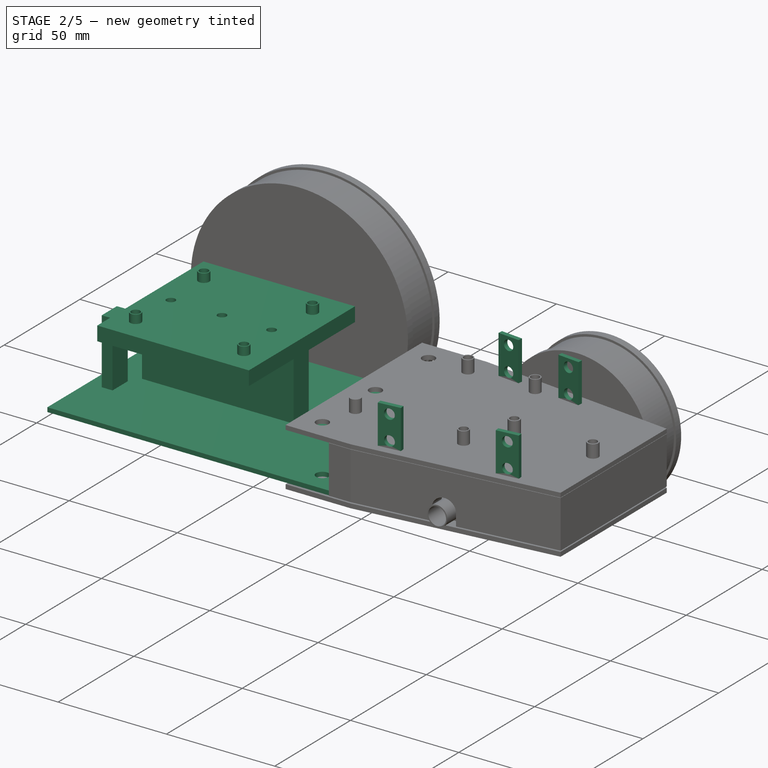
[diagram: stage 2 of 5 — iso view after this stage's code; geometry added in this stage tinted green]
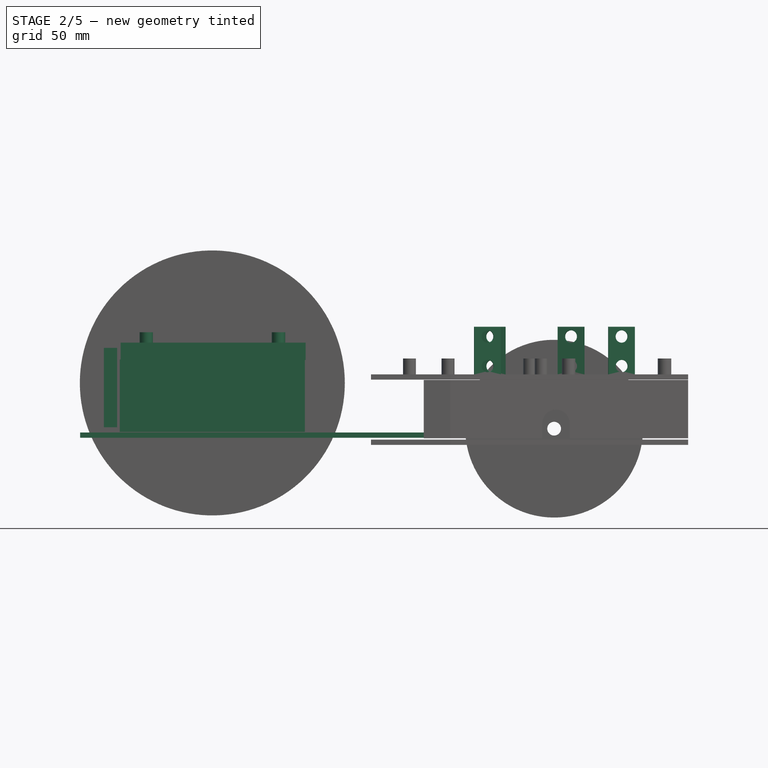
[diagram: stage 2 of 5 — front view after this stage's code; geometry added in this stage tinted green]
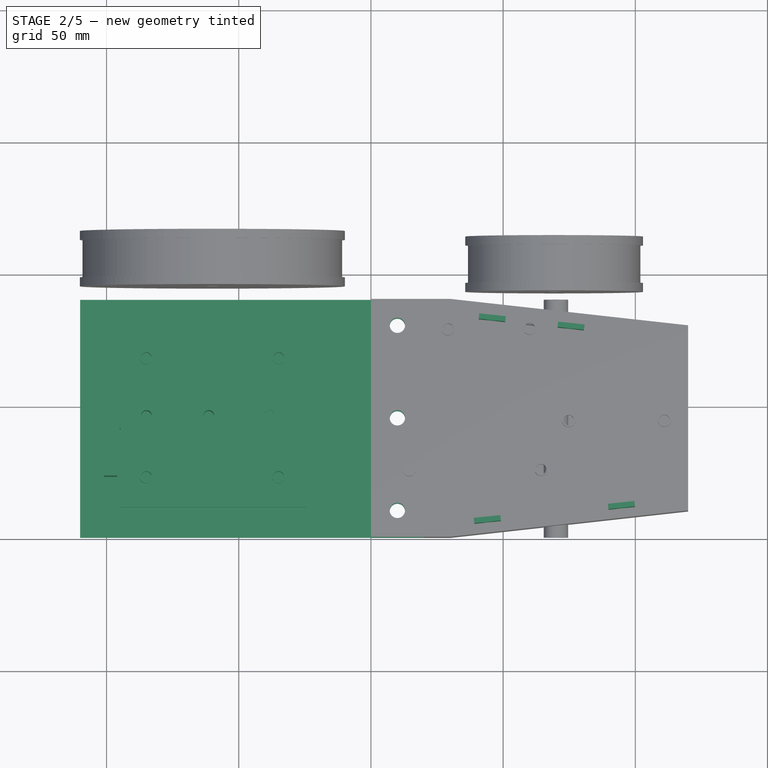
[diagram: stage 2 of 5 — top view after this stage's code; geometry added in this stage tinted green]
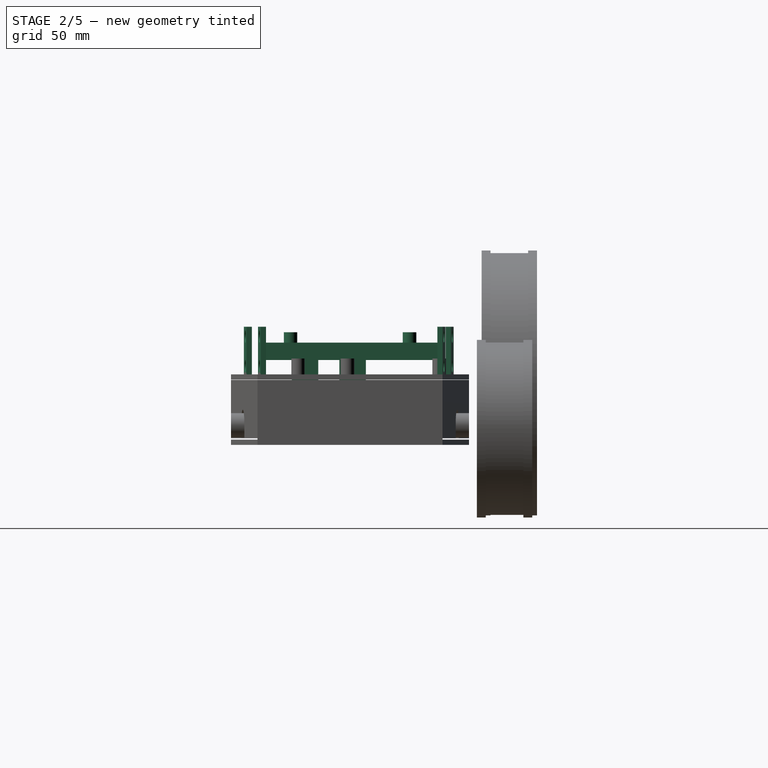
[diagram: stage 2 of 5 — right view after this stage's code; geometry added in this stage tinted green]
FEATURE [Sketcher::SketchObject] Sketch016
  FullyConstrained = false
  MapMode = 5
  Placement = pos=(-1.29e-14,0,45.9132) rot=(0,0,1;0rad)
  sketch-geometry (1):
    g0: Circle CenterX=-84.9626 CenterY=67.5048 CenterZ=0 NormalX=0 NormalY=0 NormalZ=1 AngleXU=0 Radius=2.005
  constraints (1):
    c: Diameter(g0) = 4.01
FEATURE [Part::Extrusion] Extrude075  label="Tornillo016"
  Base = -> Sketch016
  Dir = (-3e-16,0,1)
  DirMode = 2
  FaceMakerClass = Part::FaceMakerBullseye
  LengthFwd = 20
  LengthRev = 0
  Placement = pos=(0,-21.8,-26) rot=(0,0,1;0rad)
  Solid = true
  Symmetric = false
FEATURE [Part::Extrusion] Extrude076  label="Tornillo017"
  Base = -> Sketch016
  Dir = (-3e-16,0,1)
  DirMode = 2
  FaceMakerClass = Part::FaceMakerBullseye
  LengthFwd = 20
  LengthRev = 0
  Placement = pos=(23.6,-21.8,-25.9) rot=(0,0,1;0rad)
  Solid = true
  Symmetric = false
FEATURE [Part::Extrusion] Extrude077  label="Tornillo018"
  Base = -> Sketch016
  Dir = (-3e-16,0,1)
  DirMode = 2
  FaceMakerClass = Part::FaceMakerBullseye
  LengthFwd = 20
  LengthRev = 0
  Placement = pos=(46.5,-21.8,-26) rot=(0,0,1;0rad)
  Solid = true
  Symmetric = false
FEATURE [Sketcher::SketchObject] Sketch161
  FullyConstrained = false
  Placement = pos=(0,0,0) rot=(0.57735,0.57735,0.57735;2.0944rad)
  sketch-geometry (4):
    g0: LineSegment StartX=-15.4009 StartY=8.53528 StartZ=0 EndX=-5.40092 EndY=8.53528 EndZ=0
    g1: LineSegment StartX=-5.40092 StartY=8.53528 StartZ=0 EndX=-5.40092 EndY=35.8953 EndZ=0
    g2: LineSegment StartX=-5.40092 StartY=35.8953 StartZ=0 EndX=-15.4009 EndY=35.8953 EndZ=0
    g3: LineSegment StartX=-15.4009 StartY=35.8953 StartZ=0 EndX=-15.4009 EndY=8.53528 EndZ=0
  constraints (9):
    c: Coincident(g0,g1)
    c: Coincident(g1,g2)
    c: Coincident(g2,g3)
    c: Coincident(g3,g0)
    c: Horizontal(g0)
    c: Horizontal(g2)
    c: Vertical(g1)
    c: Vertical(g3)
    c: DistanceY(g1,g1) = 27.36
FEATURE [Part::Extrusion] Extrude182
  Base = -> Sketch161
  Dir = (1,0,0)
  DirMode = 2
  FaceMakerClass = Part::FaceMakerBullseye
  LengthFwd = 70
  LengthRev = 0
  Placement = pos=(-95,56.4,-0.3) rot=(0,0,1;0rad)
  Solid = true
  Symmetric = false
FEATURE [Part::Cut] Cut107
  Base = -> Extrude182
  Refine = true
  Tool = -> Extrude075
FEATURE [Part::Cut] Cut044
  Base = -> Cut107
  Refine = true
  Tool = -> Extrude076
FEATURE [Sketcher::SketchObject] Sketch162
  FullyConstrained = false
  Placement = pos=(0,0,0) rot=(1,0,0;1.5708rad)
  sketch-geometry (4):
    g0: LineSegment StartX=-140 StartY=10 StartZ=0 EndX=-130 EndY=10 EndZ=0
    g1: LineSegment StartX=-130 StartY=10 StartZ=0 EndX=-130 EndY=40 EndZ=0
    g2: LineSegment StartX=-130 StartY=40 StartZ=0 EndX=-140 EndY=40 EndZ=0
    g3: LineSegment StartX=-140 StartY=40 StartZ=0 EndX=-140 EndY=10 EndZ=0
  constraints (8):
    c: Coincident(g0,g1)
    c: Coincident(g1,g2)
    c: Coincident(g2,g3)
    c: Coincident(g3,g0)
    c: Horizontal(g0)
    c: Horizontal(g2)
    c: Vertical(g1)
    c: Vertical(g3)
FEATURE [Part::Extrusion] Extrude082  label="Soporte017"
  Base = -> Sketch162
  Dir = (0,-1,-3e-16)
  DirMode = 2
  FaceMakerClass = Part::FaceMakerBullseye
  LengthFwd = 5
  LengthRev = 0
  Placement = pos=(-96,-107,0) rot=(0,0,-1;1.5708rad)
  Solid = true
  Symmetric = false
FEATURE [Sketcher::SketchObject] Sketch164
  FullyConstrained = false
  Placement = pos=(0,0,0) rot=(1,0,0;1.5708rad)
  sketch-geometry (4):
    g0: LineSegment StartX=-140 StartY=10 StartZ=0 EndX=-130 EndY=10 EndZ=0
    g1: LineSegment StartX=-130 StartY=10 StartZ=0 EndX=-130 EndY=40 EndZ=0
    g2: LineSegment StartX=-130 StartY=40 StartZ=0 EndX=-140 EndY=40 EndZ=0
    g3: LineSegment StartX=-140 StartY=40 StartZ=0 EndX=-140 EndY=10 EndZ=0
  constraints (8):
    c: Coincident(g0,g1)
    c: Coincident(g1,g2)
    c: Coincident(g2,g3)
    c: Coincident(g3,g0)
    c: Horizontal(g0)
    c: Horizontal(g2)
    c: Vertical(g1)
    c: Vertical(g3)
FEATURE [Part::Extrusion] Extrude084  label="Soporte018"
  Base = -> Sketch164
  Dir = (0,-1,-3e-16)
  DirMode = 2
  FaceMakerClass = Part::FaceMakerBullseye
  LengthFwd = 5
  LengthRev = 0
  Placement = pos=(-96,-107,0) rot=(0,0,-1;1.5708rad)
  Solid = true
  Symmetric = false
FEATURE [Sketcher::SketchObject] Sketch166
  FullyConstrained = false
  Placement = pos=(0,0,0) rot=(1,0,0;1.5708rad)
  sketch-geometry (4):
    g0: LineSegment StartX=-140 StartY=10 StartZ=0 EndX=-130 EndY=10 EndZ=0
    g1: LineSegment StartX=-130 StartY=10 StartZ=0 EndX=-130 EndY=40 EndZ=0
    g2: LineSegment StartX=-130 StartY=40 StartZ=0 EndX=-140 EndY=40 EndZ=0
    g3: LineSegment StartX=-140 StartY=40 StartZ=0 EndX=-140 EndY=10 EndZ=0
  constraints (8):
    c: Coincident(g0,g1)
    c: Coincident(g1,g2)
    c: Coincident(g2,g3)
    c: Coincident(g3,g0)
    c: Horizontal(g0)
    c: Horizontal(g2)
    c: Vertical(g1)
    c: Vertical(g3)
FEATURE [Part::Extrusion] Extrude086  label="Soporte019"
  Base = -> Sketch166
  Dir = (0,-1,-3e-16)
  DirMode = 2
  FaceMakerClass = Part::FaceMakerBullseye
  LengthFwd = 5
  LengthRev = 0
  Placement = pos=(-96,-107,0) rot=(0,0,-1;1.5708rad)
  Solid = true
  Symmetric = false
FEATURE [Sketcher::SketchObject] Sketch168
  FullyConstrained = false
  Placement = pos=(0,0,0) rot=(1,0,0;1.5708rad)
  sketch-geometry (4):
    g0: LineSegment StartX=-140 StartY=10 StartZ=0 EndX=-130 EndY=10 EndZ=0
    g1: LineSegment StartX=-130 StartY=10 StartZ=0 EndX=-130 EndY=40 EndZ=0
    g2: LineSegment StartX=-130 StartY=40 StartZ=0 EndX=-140 EndY=40 EndZ=0
    g3: LineSegment StartX=-140 StartY=40 StartZ=0 EndX=-140 EndY=10 EndZ=0
  constraints (8):
    c: Coincident(g0,g1)
    c: Coincident(g1,g2)
    c: Coincident(g2,g3)
    c: Coincident(g3,g0)
    c: Horizontal(g0)
    c: Horizontal(g2)
    c: Vertical(g1)
    c: Vertical(g3)
FEATURE [Part::Extrusion] Extrude088  label="Soporte020"
  Base = -> Sketch168
  Dir = (0,-1,2e-16)
  DirMode = 2
  FaceMakerClass = Part::FaceMakerBullseye
  LengthFwd = 5
  LengthRev = 0
  Placement = pos=(-96,-107,0) rot=(0,0,-1;1.5708rad)
  Solid = true
  Symmetric = false
FEATURE [Sketcher::SketchObject] Sketch074
  FullyConstrained = false
  sketch-geometry (4):
    g0: LineSegment StartX=0 StartY=0 StartZ=0 EndX=130 EndY=0 EndZ=0
    g1: LineSegment StartX=130 StartY=0 StartZ=0 EndX=130 EndY=90 EndZ=0
    g2: LineSegment StartX=130 StartY=90 StartZ=0 EndX=0 EndY=90 EndZ=0
    g3: LineSegment StartX=0 StartY=90 StartZ=0 EndX=0 EndY=0 EndZ=0
  constraints (9):
    c: Coincident(g0,g1)
    c: Coincident(g1,g2)
    c: Coincident(g2,g3)
    c: Coincident(g3,g0)
    c: Horizontal(g0)
    c: Horizontal(g2)
    c: Vertical(g1)
    c: Vertical(g3)
    c: Coincident(g0,g-1)
FEATURE [Part::Extrusion] Extrude090  label="Base trasera009"
  Base = -> Sketch074
  Dir = (0,0,1)
  DirMode = 2
  FaceMakerClass = Part::FaceMakerBullseye
  LengthFwd = 2
  LengthRev = 0
  Solid = true
  Symmetric = false
FEATURE [Sketcher::SketchObject] Sketch075
  FullyConstrained = false
  MapMode = 5
  Placement = pos=(0,0,2) rot=(0,0,1;0rad)
  Support = -> [Extrude090]
  sketch-geometry (4):
    g0: LineSegment StartX=120 StartY=80.0205 StartZ=0 EndX=120 EndY=10 EndZ=0
    g1: Circle CenterX=120 CenterY=80.0205 CenterZ=0 NormalX=0 NormalY=0 NormalZ=1 AngleXU=0 Radius=2.9
    g2: Circle CenterX=120 CenterY=45.0103 CenterZ=0 NormalX=0 NormalY=0 NormalZ=1 AngleXU=0 Radius=2.9
    g3: Circle CenterX=120 CenterY=10 CenterZ=0 NormalX=0 NormalY=0 NormalZ=1 AngleXU=0 Radius=2.9
  constraints (7):
    c: Vertical(g0)
    c: Coincident(g1,g0)
    c: Coincident(g3,g0)
    c: Symmetric(g0,g0,g2)
    c: Diameter(g1) = 5.8
    c: Equal(g1,g2)
    c: Equal(g2,g3)
FEATURE [Part::Extrusion] Extrude091  label="Tornillos051"
  Base = -> Sketch075
  Dir = (0,0,1)
  DirMode = 2
  FaceMakerClass = Part::FaceMakerBullseye
  LengthFwd = 50
  LengthRev = 0
  Placement = pos=(0,0,-31) rot=(0,0,1;0rad)
  Solid = true
  Symmetric = false
FEATURE [Part::Cut] Cut047  label="Base trasera007"
  Base = -> Extrude090
  Placement = pos=(-110,0,6) rot=(0,0,1;0rad)
  Refine = true
  Tool = -> Extrude091
FEATURE [Sketcher::SketchObject] Sketch015
  FullyConstrained = false
  MapMode = 5
  Placement = pos=(-1.38e-14,0,41.9132) rot=(0,0,1;0rad)
  sketch-geometry (4):
    g0: Circle CenterX=-84.9863 CenterY=67.434 CenterZ=0 NormalX=0 NormalY=0 NormalZ=1 AngleXU=0 Radius=2.5
    g1: Circle CenterX=-85.0131 CenterY=22.4995 CenterZ=0 NormalX=0 NormalY=0 NormalZ=1 AngleXU=0 Radius=2.5
    g2: Circle CenterX=-35.0242 CenterY=22.5424 CenterZ=0 NormalX=0 NormalY=0 NormalZ=1 AngleXU=0 Radius=2.5
    g3: Circle CenterX=-34.9105 CenterY=67.5989 CenterZ=0 NormalX=0 NormalY=0 NormalZ=1 AngleXU=0 Radius=2.5
  constraints (4):
    c: Equal(g0,g1)
    c: Equal(g1,g2)
    c: Equal(g2,g3)
    c: Diameter(g0) = 5
FEATURE [Part::Extrusion] Extrude185  label="Tornillos052"
  Base = -> Sketch015
  Dir = (-3e-16,0,1)
  DirMode = 2
  FaceMakerClass = Part::FaceMakerBullseye
  LengthFwd = 8
  LengthRev = 0
  Placement = pos=(0,0,-4) rot=(0,0,1;0rad)
  Solid = true
  Symmetric = false
FEATURE [Sketcher::SketchObject] Sketch171
  FullyConstrained = false
  MapMode = 5
  Placement = pos=(-1.29e-14,0,45.9132) rot=(0,0,1;0rad)
  sketch-geometry (1):
    g0: Circle CenterX=-84.9626 CenterY=67.5048 CenterZ=0 NormalX=0 NormalY=0 NormalZ=1 AngleXU=0 Radius=2.005
  constraints (1):
    c: Diameter(g0) = 4.01
FEATURE [Part::Extrusion] Extrude186  label="Tornillo009"
  Base = -> Sketch171
  Dir = (-3e-16,0,1)
  DirMode = 2
  FaceMakerClass = Part::FaceMakerBullseye
  LengthFwd = 20
  LengthRev = 0
  Placement = pos=(50.1,0,-18) rot=(0,0,1;0rad)
  Solid = true
  Symmetric = false
FEATURE [Part::Extrusion] Extrude187  label="Tornillo010"
  Base = -> Sketch171
  Dir = (-3e-16,0,1)
  DirMode = 2
  FaceMakerClass = Part::FaceMakerBullseye
  LengthFwd = 20
  LengthRev = 0
  Placement = pos=(0,0,-15) rot=(0,0,1;0rad)
  Solid = true
  Symmetric = false
FEATURE [Part::Extrusion] Extrude188  label="Tornillo011"
  Base = -> Sketch171
  Dir = (-3e-16,0,1)
  DirMode = 2
  FaceMakerClass = Part::FaceMakerBullseye
  LengthFwd = 20
  LengthRev = 0
  Placement = pos=(50,-45,-15) rot=(0,0,1;0rad)
  Solid = true
  Symmetric = false
FEATURE [Part::Extrusion] Extrude189  label="Tornillo012"
  Base = -> Sketch171
  Dir = (-3e-16,0,1)
  DirMode = 2
  FaceMakerClass = Part::FaceMakerBullseye
  LengthFwd = 20
  LengthRev = 0
  Placement = pos=(0,-45,-17) rot=(0,0,1;0rad)
  Solid = true
  Symmetric = false
FEATURE [Part::Extrusion] Extrude190  label="Tornillo013"
  Base = -> Sketch171
  Dir = (-3e-16,0,1)
  DirMode = 2
  FaceMakerClass = Part::FaceMakerBullseye
  LengthFwd = 20
  LengthRev = 0
  Placement = pos=(0,-21.8,-20.8) rot=(0,0,1;0rad)
  Solid = true
  Symmetric = false
FEATURE [Part::Extrusion] Extrude073  label="Tornillo014"
  Base = -> Sketch171
  Dir = (-3e-16,0,1)
  DirMode = 2
  FaceMakerClass = Part::FaceMakerBullseye
  LengthFwd = 20
  LengthRev = 0
  Placement = pos=(23.6,-21.8,-20.6) rot=(0,0,1;0rad)
  Solid = true
  Symmetric = false
FEATURE [Part::Extrusion] Extrude074  label="Tornillo015"
  Base = -> Sketch171
  Dir = (-3e-16,0,1)
  DirMode = 2
  FaceMakerClass = Part::FaceMakerBullseye
  LengthFwd = 20
  LengthRev = 0
  Placement = pos=(46.5,-21.8,-20.5) rot=(0,0,1;0rad)
  Solid = true
  Symmetric = false
FEATURE [Sketcher::SketchObject] Sketch172
  FullyConstrained = false
  Placement = pos=(0,0,0) rot=(0.57735,0.57735,0.57735;2.0944rad)
  sketch-geometry (4):
    g0: LineSegment StartX=-30.4329 StartY=77.4792 StartZ=0 EndX=-30.4329 EndY=70.9192 EndZ=0
    g1: LineSegment StartX=-30.4329 StartY=70.9192 StartZ=0 EndX=39.5671 EndY=70.9192 EndZ=0
    g2: LineSegment StartX=39.5671 StartY=70.9192 StartZ=0 EndX=39.5671 EndY=77.4792 EndZ=0
    g3: LineSegment StartX=39.5671 StartY=77.4792 StartZ=0 EndX=-30.4329 EndY=77.4792 EndZ=0
  constraints (10):
    c: Vertical(g0)
    c: Coincident(g0,g1)
    c: Horizontal(g1)
    c: Coincident(g1,g2)
    c: Vertical(g2)
    c: Coincident(g2,g3)
    c: Coincident(g3,g0)
    c: Horizontal(g3)
    c: DistanceX(g3,g3) = 70
    c: DistanceY(g2,g2) = 6.56
FEATURE [Part::Extrusion] Extrude184
  Base = -> Sketch172
  Dir = (1,0,0)
  DirMode = 2
  FaceMakerClass = Part::FaceMakerBullseye
  LengthFwd = 70
  LengthRev = 0
  Placement = pos=(-94.7,41.5,-35.5) rot=(0,0,1;0rad)
  Solid = true
  Symmetric = false
FEATURE [Part::MultiFuse] Fusion018
  Refine = true
  Shapes = -> [Extrude184,Extrude185]
FEATURE [Part::Cut] Cut109
  Base = -> Fusion018
  Refine = true
  Tool = -> Extrude186
FEATURE [Part::Cut] Cut110
  Base = -> Cut109
  Refine = true
  Tool = -> Extrude187
FEATURE [Part::Cut] Cut111
  Base = -> Cut110
  Refine = true
  Tool = -> Extrude188
FEATURE [Part::Cut] Cut112
  Base = -> Cut111
  Refine = true
  Tool = -> Extrude189
FEATURE [Part::Cut] Cut113
  Base = -> Cut112
  Refine = true
  Tool = -> Extrude190
FEATURE [Part::Cut] Cut114
  Base = -> Cut113
  Refine = true
  Tool = -> Extrude073
FEATURE [Part::Cut] Cut115  label="IMPRIMIR001"
  Base = -> Cut114
  Refine = true
  Tool = -> Extrude074
FEATURE [Part::Cut] Cut118  label="Soporte021"
  Base = -> Extrude049
  Placement = pos=(77.0696,-87.6841,18) rot=(0,0,-1;1.46608rad)
  Refine = true
  Tool = -> Extrude050
FEATURE [Part::Cut] Cut119  label="Soporte022"
  Base = -> Extrude049
  Placement = pos=(26.349,-93.0151,18) rot=(0,0,-1;1.46608rad)
  Refine = true
  Tool = -> Extrude050
FEATURE [Part::Cut] Cut120  label="Soporte023"
  Base = -> Extrude049
  Placement = pos=(37.7054,-13.986,18) rot=(0,0,-1;1.67552rad)
  Refine = true
  Tool = -> Extrude050
FEATURE [Part::Cut] Cut121  label="Soporte024"
  Base = -> Extrude049
  Placement = pos=(7.86971,-10.8501,18) rot=(0,0,-1;1.67552rad)
  Refine = true
  Tool = -> Extrude050
FEATURE [Part::Cut] Cut117
  Base = -> Fusion063
  Refine = true
  Tool = -> Extrude054
FEATURE [Part::MultiFuse] Fusion015
  Refine = true
  Shapes = -> [Cut117,Cut118]
FEATURE [Part::MultiFuse] Fusion016
  Refine = true
  Shapes = -> [Fusion015,Cut119]
FEATURE [Part::MultiFuse] Fusion017
  Refine = true
  Shapes = -> [Fusion016,Cut120]
FEATURE [Part::MultiFuse] Fusion064  label="Base imprimir"
  Refine = true
  Shapes = -> [Fusion017,Cut121]
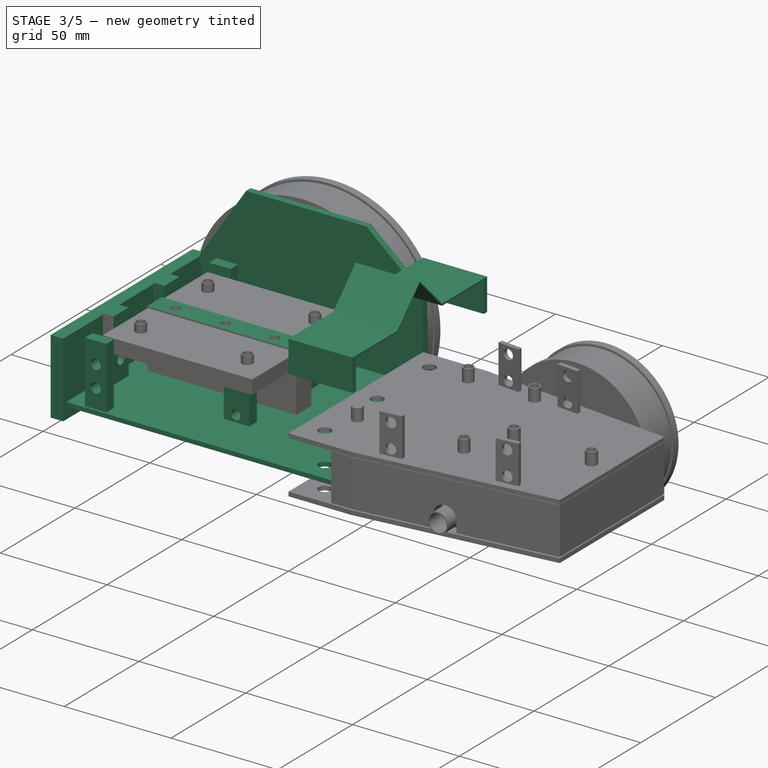
[diagram: stage 3 of 5 — iso view after this stage's code; geometry added in this stage tinted green]
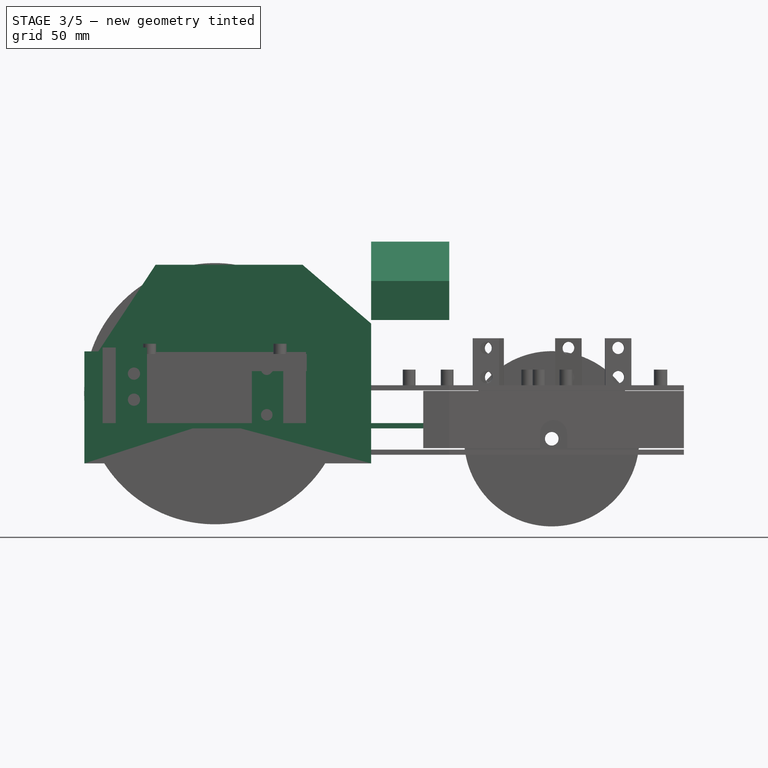
[diagram: stage 3 of 5 — front view after this stage's code; geometry added in this stage tinted green]
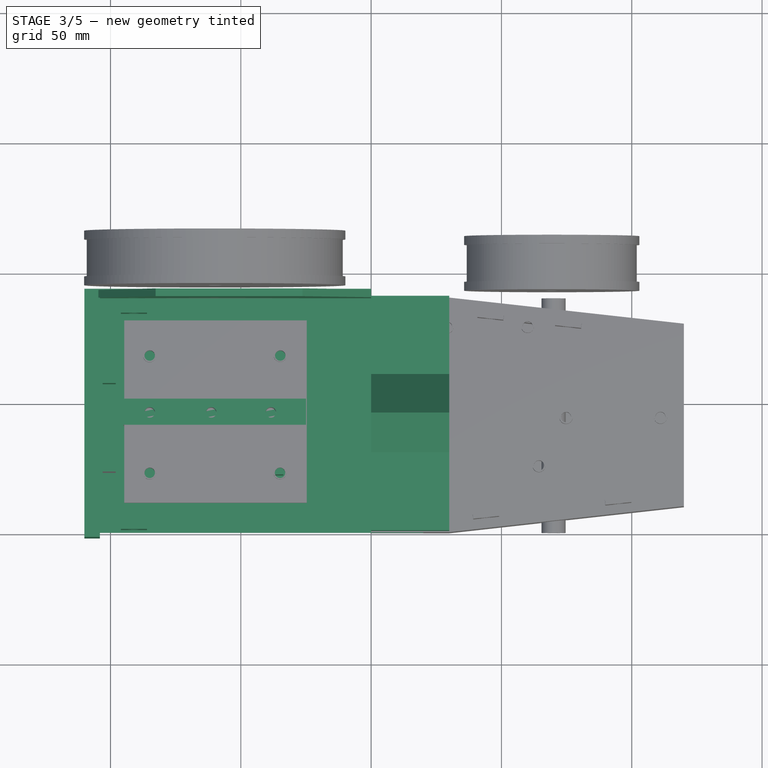
[diagram: stage 3 of 5 — top view after this stage's code; geometry added in this stage tinted green]
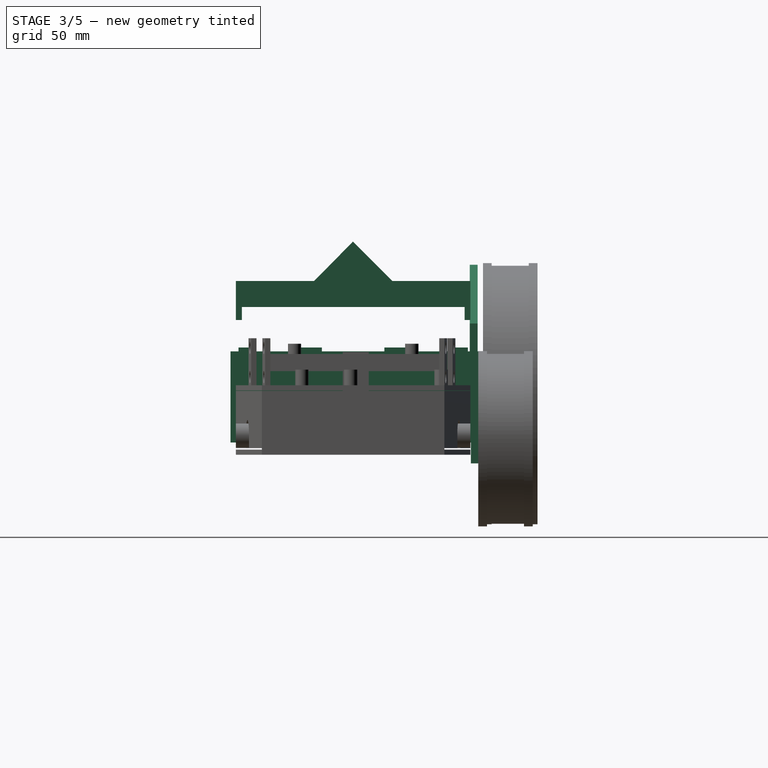
[diagram: stage 3 of 5 — right view after this stage's code; geometry added in this stage tinted green]
FEATURE [Sketcher::SketchObject] Sketch134
  FullyConstrained = false
  MapMode = 5
  Placement = pos=(0,0,8) rot=(0,0,1;0rad)
  sketch-geometry (4):
    g0: LineSegment StartX=-110 StartY=92.3912 StartZ=0 EndX=-110 EndY=-2.04587 EndZ=0
    g1: LineSegment StartX=-110 StartY=-2.04587 StartZ=0 EndX=-104.089 EndY=-2.04587 EndZ=0
    g2: LineSegment StartX=-104.089 StartY=-2.04587 StartZ=0 EndX=-104.089 EndY=92.3912 EndZ=0
    g3: LineSegment StartX=-104.089 StartY=92.3912 StartZ=0 EndX=-110 EndY=92.3912 EndZ=0
  constraints (7):
    c: Vertical(g0)
    c: Coincident(g0,g1)
    c: Coincident(g1,g2)
    c: Vertical(g2)
    c: Coincident(g2,g3)
    c: Coincident(g3,g0)
    c: Horizontal(g3)
FEATURE [Part::Extrusion] Extrude156
  Base = -> Sketch134
  Dir = (0,0,1)
  DirMode = 2
  FaceMakerClass = Part::FaceMakerBullseye
  LengthFwd = 35
  LengthRev = 0
  Solid = true
  Symmetric = false
FEATURE [Sketcher::SketchObject] Sketch137
  FullyConstrained = false
  sketch-geometry (4):
    g0: LineSegment StartX=-110 StartY=90.9192 StartZ=0 EndX=0 EndY=90.9192 EndZ=0
    g1: LineSegment StartX=0 StartY=90.9192 StartZ=0 EndX=0 EndY=93.9192 EndZ=0
    g2: LineSegment StartX=0 StartY=93.9192 StartZ=0 EndX=-110 EndY=93.9192 EndZ=0
    g3: LineSegment StartX=-110 StartY=93.9192 StartZ=0 EndX=-110 EndY=90.9192 EndZ=0
  constraints (9):
    c: Coincident(g0,g1)
    c: Coincident(g1,g2)
    c: Coincident(g2,g3)
    c: Coincident(g3,g0)
    c: Horizontal(g0)
    c: Horizontal(g2)
    c: Vertical(g1)
    c: Vertical(g3)
    c: DistanceY(g3,g3) = 3
FEATURE [Part::Extrusion] Extrude158  label="Tapa lateral baja003"
  Base = -> Sketch137
  Dir = (0,0,1)
  DirMode = 2
  FaceMakerClass = Part::FaceMakerBullseye
  LengthFwd = 43
  LengthRev = 0
  Solid = true
  Symmetric = false
FEATURE [Sketcher::SketchObject] Sketch138
  FullyConstrained = false
  Placement = pos=(0,0,0) rot=(1,0,0;1.5708rad)
  sketch-geometry (6):
    g0: LineSegment StartX=-104.692 StartY=42.9568 StartZ=0 EndX=-82.6728 EndY=76.238 EndZ=0
    g1: LineSegment StartX=-82.6728 StartY=76.238 StartZ=0 EndX=-26.3532 EndY=76.238 EndZ=0
    g2: LineSegment StartX=-26.3532 StartY=76.238 StartZ=0 EndX=0 EndY=53.6679 EndZ=0
    g3: LineSegment StartX=0 StartY=53.6679 StartZ=0 EndX=0 EndY=40 EndZ=0
    g4: LineSegment StartX=0 StartY=40 StartZ=0 EndX=-104.974 EndY=40 EndZ=0
    g5: LineSegment StartX=-104.974 StartY=40 StartZ=0 EndX=-104.692 EndY=42.9568 EndZ=0
  constraints (10):
    c: Coincident(g0,g1)
    c: Horizontal(g1)
    c: Coincident(g1,g2)
    c: PointOnObject(g2,g-2)
    c: Coincident(g2,g3)
    c: PointOnObject(g3,g-2)
    c: Coincident(g3,g4)
    c: Horizontal(g4)
    c: Coincident(g4,g5)
    c: Coincident(g5,g0)
FEATURE [Part::Extrusion] Extrude159  label="Tapa lateral arriba002"
  Base = -> Sketch138
  Dir = (0,-1,2e-16)
  DirMode = 2
  FaceMakerClass = Part::FaceMakerBullseye
  LengthFwd = 3
  LengthRev = 0
  Placement = pos=(0,92.75,0) rot=(0,0,1;0rad)
  Solid = true
  Symmetric = false
FEATURE [Sketcher::SketchObject] Sketch143
  FullyConstrained = false
  MapMode = 5
  Placement = pos=(-98,-107,0) rot=(0.57735,-0.57735,-0.57735;2.0944rad)
  sketch-geometry (4):
    g0: LineSegment StartX=-140.012 StartY=30 StartZ=0 EndX=-130 EndY=30 EndZ=0
    g1: Circle CenterX=-135.006 CenterY=30 CenterZ=0 NormalX=0 NormalY=0 NormalZ=1 AngleXU=0 Radius=2.34
    g2: LineSegment StartX=-140 StartY=20 StartZ=0 EndX=-130.017 EndY=20 EndZ=0
    g3: Circle CenterX=-135.008 CenterY=20 CenterZ=0 NormalX=0 NormalY=0 NormalZ=1 AngleXU=0 Radius=2.34
  constraints (6):
    c: Horizontal(g0)
    c: Symmetric(g0,g0,g1)
    c: Horizontal(g2)
    c: Symmetric(g2,g2,g3)
    c: Equal(g1,g3)
    c: Diameter(g3) = 4.68
FEATURE [Part::Extrusion] Extrude167  label="Tornillos040"
  Base = -> Sketch143
  Dir = (-1,2e-16,2e-16)
  DirMode = 2
  FaceMakerClass = Part::FaceMakerBullseye
  LengthFwd = 20
  LengthRev = 0
  Placement = pos=(-63.05,205.85,-3) rot=(0,0,1;1.5708rad)
  Solid = true
  Symmetric = false
FEATURE [Part::Cut] Cut096
  Base = -> Extrude158
  Refine = true
  Tool = -> Extrude167
FEATURE [Sketcher::SketchObject] Sketch147
  FullyConstrained = false
  MapMode = 5
  Placement = pos=(-4e-15,-17.4,11) rot=(0,0.707107,0.707107;3.14159rad)
  sketch-geometry (1):
    g0: Circle CenterX=0 CenterY=-11.0274 CenterZ=0 NormalX=0 NormalY=0 NormalZ=1 AngleXU=0 Radius=3.93177
FEATURE [Part::Extrusion] Extrude169  label="Pieza Clave motor010"
  Base = -> Sketch147
  Dir = (0,1,-2e-16)
  DirMode = 2
  FaceMakerClass = Part::FaceMakerBullseye
  LengthFwd = 40
  LengthRev = 0
  Placement = pos=(-60.175,79.6,20.0694) rot=(0,-1,0;1.5708rad)
  Solid = true
  Symmetric = false
FEATURE [Part::Cut] Cut097
  Base = -> Cut096
  Placement = pos=(0,-0.75,0) rot=(0,0,1;0rad)
  Refine = true
  Tool = -> Extrude169
FEATURE [Part::MultiFuse] Fusion050
  Refine = true
  Shapes = -> [Extrude159,Cut097]
FEATURE [Sketcher::SketchObject] Sketch148
  FullyConstrained = false
  MapMode = 5
  Placement = pos=(0,0,30) rot=(0,0,1;0rad)
  sketch-geometry (8):
    g0: LineSegment StartX=0 StartY=90 StartZ=0 EndX=30 EndY=90 EndZ=0
    g1: LineSegment StartX=30 StartY=90 StartZ=0 EndX=30 EndY=87.7792 EndZ=0
    g2: LineSegment StartX=30 StartY=87.7792 StartZ=0 EndX=0 EndY=87.7792 EndZ=0
    g3: LineSegment StartX=0 StartY=87.7792 StartZ=0 EndX=0 EndY=90 EndZ=0
    g4: LineSegment StartX=0 StartY=0 StartZ=0 EndX=0 EndY=2.31108 EndZ=0
    g5: LineSegment StartX=0 StartY=2.31108 StartZ=0 EndX=30 EndY=2.31108 EndZ=0
    g6: LineSegment StartX=30 StartY=2.31108 StartZ=0 EndX=30 EndY=0 EndZ=0
    g7: LineSegment StartX=30 StartY=0 StartZ=0 EndX=0 EndY=0 EndZ=0
  constraints (18):
    c: PointOnObject(g0,g-2)
    c: Horizontal(g0)
    c: Coincident(g0,g1)
    c: Vertical(g1)
    c: Coincident(g1,g2)
    c: PointOnObject(g2,g-2)
    c: Horizontal(g2)
    c: Coincident(g2,g3)
    c: Coincident(g3,g0)
    c: Coincident(g-1,g4)
    c: PointOnObject(g4,g-2)
    c: Coincident(g4,g5)
    c: Horizontal(g5)
    c: Coincident(g5,g6)
    c: PointOnObject(g6,g-1)
    c: Vertical(g6)
    c: Coincident(g6,g7)
    c: Coincident(g7,g4)
FEATURE [Part::Extrusion] Extrude170
  Base = -> Sketch148
  Dir = (0,0,1)
  DirMode = 2
  FaceMakerClass = Part::FaceMakerBullseye
  LengthFwd = 7
  LengthRev = 0
  Placement = pos=(0,0,25.02) rot=(0,0,1;0rad)
  Solid = true
  Symmetric = false
FEATURE [Sketcher::SketchObject] Sketch152
  FullyConstrained = false
  Placement = pos=(0,0,0) rot=(0.57735,0.57735,0.57735;2.0944rad)
  sketch-geometry (7):
    g0: LineSegment StartX=90 StartY=60 StartZ=0 EndX=90 EndY=70 EndZ=0
    g1: LineSegment StartX=90 StartY=70 StartZ=0 EndX=60 EndY=70 EndZ=0
    g2: LineSegment StartX=60 StartY=70 StartZ=0 EndX=44.9387 EndY=85.0968 EndZ=0
    g3: LineSegment StartX=44.9387 StartY=85.0968 StartZ=0 EndX=30 EndY=70 EndZ=0
    g4: LineSegment StartX=30 StartY=70 StartZ=0 EndX=0 EndY=70 EndZ=0
    g5: LineSegment StartX=0 StartY=70 StartZ=0 EndX=0 EndY=60 EndZ=0
    g6: LineSegment StartX=0 StartY=60 StartZ=0 EndX=90 EndY=60 EndZ=0
  constraints (12):
    c: Vertical(g0)
    c: Coincident(g0,g1)
    c: Horizontal(g1)
    c: Coincident(g1,g2)
    c: Coincident(g2,g3)
    c: Coincident(g3,g4)
    c: PointOnObject(g4,g-2)
    c: Horizontal(g4)
    c: Coincident(g4,g5)
    c: PointOnObject(g5,g-2)
    c: Coincident(g5,g6)
    c: Horizontal(g6)
FEATURE [Part::Extrusion] Extrude173
  Base = -> Sketch152
  Dir = (1,0,0)
  DirMode = 2
  FaceMakerClass = Part::FaceMakerBullseye
  LengthFwd = 30
  LengthRev = 0
  Solid = true
  Symmetric = false
FEATURE [Sketcher::SketchObject] Sketch153
  FullyConstrained = false
  MapMode = 5
  Placement = pos=(30,0,0) rot=(0.57735,0.57735,0.57735;2.0944rad)
  Support = -> [Extrude173]
  sketch-geometry (8):
    g0: LineSegment StartX=2.27646 StartY=59.9596 StartZ=0 EndX=2.27646 EndY=69.0502 EndZ=0
    g1: LineSegment StartX=2.27646 StartY=69.0502 StartZ=0 EndX=29.9529 EndY=69.0502 EndZ=0
    g2: LineSegment StartX=29.9529 StartY=69.0502 StartZ=0 EndX=44.9522 EndY=84.4995 EndZ=0
    g3: LineSegment StartX=44.9522 StartY=84.4995 StartZ=0 EndX=59.9991 EndY=69.1078 EndZ=0
    g4: LineSegment StartX=59.9991 StartY=69.1078 StartZ=0 EndX=87.7781 EndY=69.1078 EndZ=0
    g5: LineSegment StartX=87.7781 StartY=69.1078 StartZ=0 EndX=87.7781 EndY=61.9714 EndZ=0
    g6: LineSegment StartX=87.7781 StartY=61.9714 StartZ=0 EndX=87.7781 EndY=59.9596 EndZ=0
    g7: LineSegment StartX=87.7781 StartY=59.9596 StartZ=0 EndX=2.27646 EndY=59.9596 EndZ=0
  constraints (14):
    c: Vertical(g0)
    c: Coincident(g0,g1)
    c: Horizontal(g1)
    c: Coincident(g1,g2)
    c: Coincident(g2,g3)
    c: Coincident(g3,g4)
    c: Horizontal(g4)
    c: Coincident(g4,g5)
    c: Vertical(g5)
    c: Coincident(g5,g6)
    c: Vertical(g6)
    c: Coincident(g6,g7)
    c: Coincident(g7,g0)
    c: Horizontal(g7)
FEATURE [Part::Extrusion] Extrude174
  Base = -> Sketch153
  Dir = (1,0,0)
  DirMode = 2
  FaceMakerClass = Part::FaceMakerBullseye
  LengthFwd = 30
  LengthRev = 0
  Placement = pos=(-29.9,0,0) rot=(0,0,1;0rad)
  Solid = true
  Symmetric = false
FEATURE [Part::Cut] Cut099
  Base = -> Extrude173
  Refine = true
  Tool = -> Extrude174
FEATURE [Part::MultiFuse] Fusion056
  Refine = true
  Shapes = -> [Cut099,Extrude170]
FEATURE [Part::Cut] Cut045  label="BBBBBBBBB"
  Base = -> Cut044
  Placement = pos=(0,0,-0.3) rot=(0,0,1;0rad)
  Refine = true
  Tool = -> Extrude077
FEATURE [Sketcher::SketchObject] Sketch163
  FullyConstrained = false
  MapMode = 5
  Placement = pos=(-101,-107,-1.1e-15) rot=(0.57735,-0.57735,-0.57735;2.0944rad)
  Support = -> [Extrude082]
  sketch-geometry (4):
    g0: LineSegment StartX=-140.012 StartY=30 StartZ=0 EndX=-130 EndY=30 EndZ=0
    g1: Circle CenterX=-135.006 CenterY=30 CenterZ=0 NormalX=0 NormalY=0 NormalZ=1 AngleXU=0 Radius=2.34
    g2: LineSegment StartX=-140 StartY=20 StartZ=0 EndX=-130.017 EndY=20 EndZ=0
    g3: Circle CenterX=-135.008 CenterY=20 CenterZ=0 NormalX=0 NormalY=0 NormalZ=1 AngleXU=0 Radius=2.34
  constraints (6):
    c: Horizontal(g0)
    c: Symmetric(g0,g0,g1)
    c: Horizontal(g2)
    c: Symmetric(g2,g2,g3)
    c: Equal(g1,g3)
    c: Diameter(g3) = 4.68
FEATURE [Part::Extrusion] Extrude083  label="Tornillos047"
  Base = -> Sketch163
  Dir = (-1,2e-16,-2e-16)
  DirMode = 2
  FaceMakerClass = Part::FaceMakerBullseye
  LengthFwd = 20
  LengthRev = 0
  Placement = pos=(17,0,0) rot=(0,0,1;0rad)
  Solid = true
  Symmetric = false
FEATURE [Part::Cut] Cut053  label="Soporte014"
  Base = -> Extrude082
  Placement = pos=(-2,0,-3) rot=(0,0,1;0rad)
  Refine = true
  Tool = -> Extrude083
FEATURE [Sketcher::SketchObject] Sketch165
  FullyConstrained = false
  MapMode = 5
  Placement = pos=(-101,-107,-1.1e-15) rot=(0.57735,-0.57735,-0.57735;2.0944rad)
  Support = -> [Extrude084]
  sketch-geometry (4):
    g0: LineSegment StartX=-140.012 StartY=30 StartZ=0 EndX=-130 EndY=30 EndZ=0
    g1: Circle CenterX=-135.006 CenterY=30 CenterZ=0 NormalX=0 NormalY=0 NormalZ=1 AngleXU=0 Radius=2.34
    g2: LineSegment StartX=-140 StartY=20 StartZ=0 EndX=-130.017 EndY=20 EndZ=0
    g3: Circle CenterX=-135.008 CenterY=20 CenterZ=0 NormalX=0 NormalY=0 NormalZ=1 AngleXU=0 Radius=2.34
  constraints (6):
    c: Horizontal(g0)
    c: Symmetric(g0,g0,g1)
    c: Horizontal(g2)
    c: Symmetric(g2,g2,g3)
    c: Equal(g1,g3)
    c: Diameter(g3) = 4.68
FEATURE [Part::Extrusion] Extrude085  label="Tornillos048"
  Base = -> Sketch165
  Dir = (-1,2e-16,-2e-16)
  DirMode = 2
  FaceMakerClass = Part::FaceMakerBullseye
  LengthFwd = 20
  LengthRev = 0
  Placement = pos=(17,0,0) rot=(0,0,1;0rad)
  Solid = true
  Symmetric = false
FEATURE [Part::Cut] Cut054  label="Soporte015"
  Base = -> Extrude084
  Placement = pos=(-2,34,-3) rot=(0,0,1;0rad)
  Refine = true
  Tool = -> Extrude085
FEATURE [Sketcher::SketchObject] Sketch167
  FullyConstrained = false
  MapMode = 5
  Placement = pos=(-101,-107,-1.1e-15) rot=(0.57735,-0.57735,-0.57735;2.0944rad)
  Support = -> [Extrude086]
  sketch-geometry (4):
    g0: LineSegment StartX=-140.012 StartY=30 StartZ=0 EndX=-130 EndY=30 EndZ=0
    g1: Circle CenterX=-135.006 CenterY=30 CenterZ=0 NormalX=0 NormalY=0 NormalZ=1 AngleXU=0 Radius=2.34
    g2: LineSegment StartX=-140 StartY=20 StartZ=0 EndX=-130.017 EndY=20 EndZ=0
    g3: Circle CenterX=-135.008 CenterY=20 CenterZ=0 NormalX=0 NormalY=0 NormalZ=1 AngleXU=0 Radius=2.34
  constraints (6):
    c: Horizontal(g0)
    c: Symmetric(g0,g0,g1)
    c: Horizontal(g2)
    c: Symmetric(g2,g2,g3)
    c: Equal(g1,g3)
    c: Diameter(g3) = 4.68
FEATURE [Part::Extrusion] Extrude087  label="Tornillos049"
  Base = -> Sketch167
  Dir = (-1,2e-16,-2e-16)
  DirMode = 2
  FaceMakerClass = Part::FaceMakerBullseye
  LengthFwd = 20
  LengthRev = 0
  Placement = pos=(17,0,0) rot=(0,0,1;0rad)
  Solid = true
  Symmetric = false
FEATURE [Part::Cut] Cut052  label="Soporte013"
  Base = -> Extrude086
  Placement = pos=(-119,-95,-3) rot=(0,0,-1;1.5708rad)
  Refine = true
  Tool = -> Extrude087
FEATURE [Sketcher::SketchObject] Sketch169
  FullyConstrained = false
  MapMode = 5
  Placement = pos=(-101,-107,1.1e-15) rot=(0.57735,-0.57735,-0.57735;2.0944rad)
  Support = -> [Extrude088]
  sketch-geometry (4):
    g0: LineSegment StartX=-140.012 StartY=30 StartZ=0 EndX=-130 EndY=30 EndZ=0
    g1: Circle CenterX=-135.006 CenterY=30 CenterZ=0 NormalX=0 NormalY=0 NormalZ=1 AngleXU=0 Radius=2.34
    g2: LineSegment StartX=-140 StartY=20 StartZ=0 EndX=-130.017 EndY=20 EndZ=0
    g3: Circle CenterX=-135.008 CenterY=20 CenterZ=0 NormalX=0 NormalY=0 NormalZ=1 AngleXU=0 Radius=2.34
  constraints (6):
    c: Horizontal(g0)
    c: Symmetric(g0,g0,g1)
    c: Horizontal(g2)
    c: Symmetric(g2,g2,g3)
    c: Equal(g1,g3)
    c: Diameter(g3) = 4.68
FEATURE [Part::Extrusion] Extrude089  label="Tornillos050"
  Base = -> Sketch169
  Dir = (-1,-2e-16,2e-16)
  DirMode = 2
  FaceMakerClass = Part::FaceMakerBullseye
  LengthFwd = 20
  LengthRev = 0
  Placement = pos=(17,0,0) rot=(0,0,1;0rad)
  Solid = true
  Symmetric = false
FEATURE [Part::Cut] Cut055  label="Soporte016"
  Base = -> Extrude088
  Placement = pos=(-119,-12,-3) rot=(0,0,-1;1.5708rad)
  Refine = true
  Tool = -> Extrude089
FEATURE [Part::MultiFuse] Fusion059
  Refine = true
  Shapes = -> [Cut047,Cut045]
FEATURE [Part::MultiFuse] Fusion060
  Refine = true
  Shapes = -> [Fusion059,Cut053]
FEATURE [Part::MultiFuse] Fusion061
  Refine = true
  Shapes = -> [Fusion060,Cut052]
FEATURE [Sketcher::SketchObject] Sketch077
  FullyConstrained = false
  Placement = pos=(0,0,0) rot=(1,0,0;1.5708rad)
  sketch-geometry (4):
    g0: LineSegment StartX=-45.7334 StartY=0 StartZ=0 EndX=-33.7334 EndY=0 EndZ=0
    g1: LineSegment StartX=-33.7334 StartY=0 StartZ=0 EndX=-33.7334 EndY=26.0118 EndZ=0
    g2: LineSegment StartX=-33.7334 StartY=26.0118 StartZ=0 EndX=-45.7334 EndY=26.0118 EndZ=0
    g3: LineSegment StartX=-45.7334 StartY=26.0118 StartZ=0 EndX=-45.7334 EndY=0 EndZ=0
  constraints (10):
    c: Coincident(g0,g1)
    c: Coincident(g1,g2)
    c: Coincident(g2,g3)
    c: Coincident(g3,g0)
    c: Horizontal(g0)
    c: Horizontal(g2)
    c: Vertical(g1)
    c: Vertical(g3)
    c: PointOnObject(g0,g-1)
    c: DistanceX(g2,g2) = 12
FEATURE [Part::Extrusion] Extrude098
  Base = -> Sketch077
  Dir = (0,-1,-3e-16)
  DirMode = 2
  FaceMakerClass = Part::FaceMakerBullseye
  LengthFwd = 5
  LengthRev = 0
  Solid = true
  Symmetric = false
FEATURE [Sketcher::SketchObject] Sketch078
  FullyConstrained = false
  Placement = pos=(0,0,0) rot=(1,0,0;1.5708rad)
  sketch-geometry (1):
    g0: Circle CenterX=-30.2422 CenterY=20.0161 CenterZ=0 NormalX=0 NormalY=0 NormalZ=1 AngleXU=0 Radius=2.21
  constraints (1):
    c: Diameter(g0) = 4.42
FEATURE [Part::Extrusion] Extrude099
  Base = -> Sketch078
  Dir = (0,-1,-3e-16)
  DirMode = 2
  FaceMakerClass = Part::FaceMakerBullseye
  LengthFwd = 10
  LengthRev = 0
  Placement = pos=(-9.8,3,2.68) rot=(0,0,1;0rad)
  Solid = true
  Symmetric = false
FEATURE [Part::Cut] Cut056
  Base = -> Extrude098
  Refine = true
  Tool = -> Extrude099
FEATURE [Sketcher::SketchObject] Sketch079
  FullyConstrained = false
  Placement = pos=(0,0,0) rot=(1,0,0;1.5708rad)
  sketch-geometry (1):
    g0: Circle CenterX=-30.2422 CenterY=20.0161 CenterZ=0 NormalX=0 NormalY=0 NormalZ=1 AngleXU=0 Radius=2.21
  constraints (1):
    c: Diameter(g0) = 4.42
FEATURE [Part::Extrusion] Extrude100
  Base = -> Sketch079
  Dir = (0,-1,-3e-16)
  DirMode = 2
  FaceMakerClass = Part::FaceMakerBullseye
  LengthFwd = 10
  LengthRev = 0
  Placement = pos=(-9.8,5,-14.82) rot=(0,0,1;0rad)
  Solid = true
  Symmetric = false
FEATURE [Part::Cut] Cut057
  Base = -> Cut056
  Placement = pos=(0,27,6) rot=(0,0,1;0rad)
  Refine = true
  Tool = -> Extrude100
FEATURE [Part::MultiFuse] Fusion062
  Refine = true
  Shapes = -> [Fusion061,Cut057]
FEATURE [Sketcher::SketchObject] Sketch080
  FullyConstrained = false
  Placement = pos=(0,0,0) rot=(1,0,0;1.5708rad)
  sketch-geometry (4):
    g0: LineSegment StartX=-45.7334 StartY=0 StartZ=0 EndX=-33.7334 EndY=0 EndZ=0
    g1: LineSegment StartX=-33.7334 StartY=0 StartZ=0 EndX=-33.7334 EndY=26.0118 EndZ=0
    g2: LineSegment StartX=-33.7334 StartY=26.0118 StartZ=0 EndX=-45.7334 EndY=26.0118 EndZ=0
    g3: LineSegment StartX=-45.7334 StartY=26.0118 StartZ=0 EndX=-45.7334 EndY=0 EndZ=0
  constraints (10):
    c: Coincident(g0,g1)
    c: Coincident(g1,g2)
    c: Coincident(g2,g3)
    c: Coincident(g3,g0)
    c: Horizontal(g0)
    c: Horizontal(g2)
    c: Vertical(g1)
    c: Vertical(g3)
    c: PointOnObject(g0,g-1)
    c: DistanceX(g2,g2) = 12
FEATURE [Part::Extrusion] Extrude101
  Base = -> Sketch080
  Dir = (0,-1,2e-16)
  DirMode = 2
  FaceMakerClass = Part::FaceMakerBullseye
  LengthFwd = 5
  LengthRev = 0
  Solid = true
  Symmetric = false
FEATURE [Sketcher::SketchObject] Sketch081
  FullyConstrained = false
  Placement = pos=(0,0,0) rot=(1,0,0;1.5708rad)
  sketch-geometry (1):
    g0: Circle CenterX=-30.2422 CenterY=20.0161 CenterZ=0 NormalX=0 NormalY=0 NormalZ=1 AngleXU=0 Radius=2.21
  constraints (1):
    c: Diameter(g0) = 4.42
FEATURE [Part::Extrusion] Extrude102
  Base = -> Sketch081
  Dir = (0,-1,-3e-16)
  DirMode = 2
  FaceMakerClass = Part::FaceMakerBullseye
  LengthFwd = 10
  LengthRev = 0
  Placement = pos=(-9.8,3,2.68) rot=(0,0,1;0rad)
  Solid = true
  Symmetric = false
FEATURE [Part::Cut] Cut058
  Base = -> Extrude101
  Refine = true
  Tool = -> Extrude102
FEATURE [Sketcher::SketchObject] Sketch082
  FullyConstrained = false
  Placement = pos=(0,0,0) rot=(1,0,0;1.5708rad)
  sketch-geometry (1):
    g0: Circle CenterX=-30.2422 CenterY=20.0161 CenterZ=0 NormalX=0 NormalY=0 NormalZ=1 AngleXU=0 Radius=2.21
  constraints (1):
    c: Diameter(g0) = 4.42
FEATURE [Part::Extrusion] Extrude103
  Base = -> Sketch082
  Dir = (0,-1,-3e-16)
  DirMode = 2
  FaceMakerClass = Part::FaceMakerBullseye
  LengthFwd = 10
  LengthRev = 0
  Placement = pos=(-9.8,5,-14.82) rot=(0,0,1;0rad)
  Solid = true
  Symmetric = false
FEATURE [Part::Cut] Cut059
  Base = -> Cut058
  Placement = pos=(0,68.5,6) rot=(0,0,1;0rad)
  Refine = true
  Tool = -> Extrude103
FEATURE [Part::MultiFuse] Fusion023
  Refine = true
  Shapes = -> [Fusion062,Cut059]
FEATURE [Part::MultiFuse] Fusion024
  Refine = true
  Shapes = -> [Fusion023,Cut054]
FEATURE [Part::MultiFuse] Fusion025  label="IMPRIMIR"
  Placement = pos=(0,0,7.45) rot=(0,0,1;0rad)
  Refine = true
  Shapes = -> [Fusion024,Cut055]
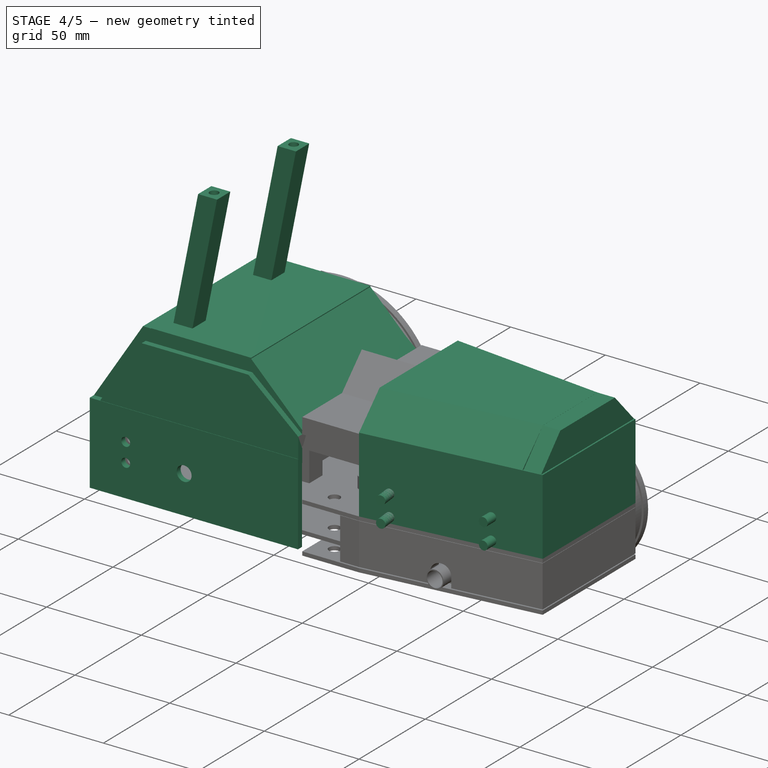
[diagram: stage 4 of 5 — iso view after this stage's code; geometry added in this stage tinted green]
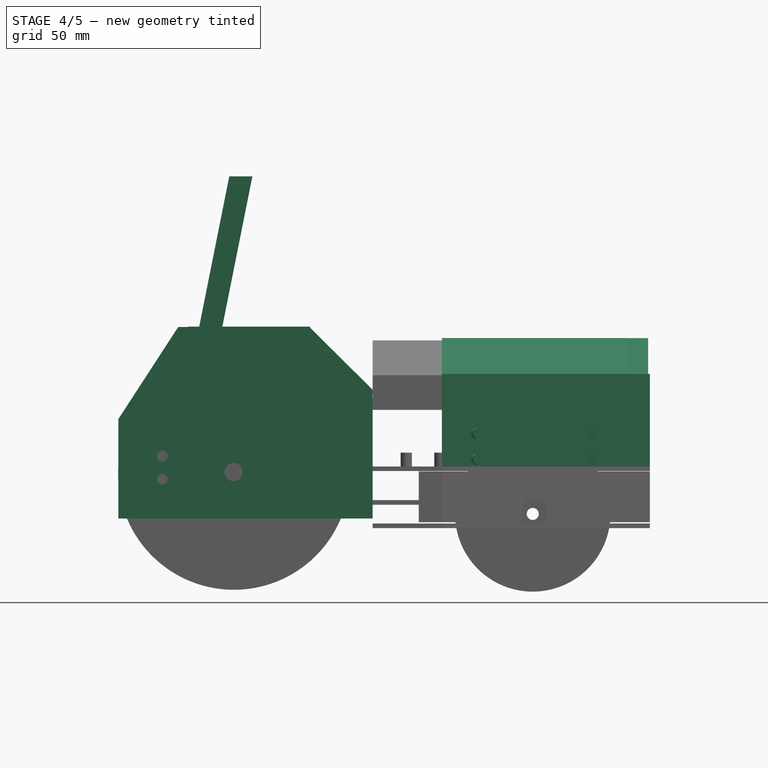
[diagram: stage 4 of 5 — front view after this stage's code; geometry added in this stage tinted green]
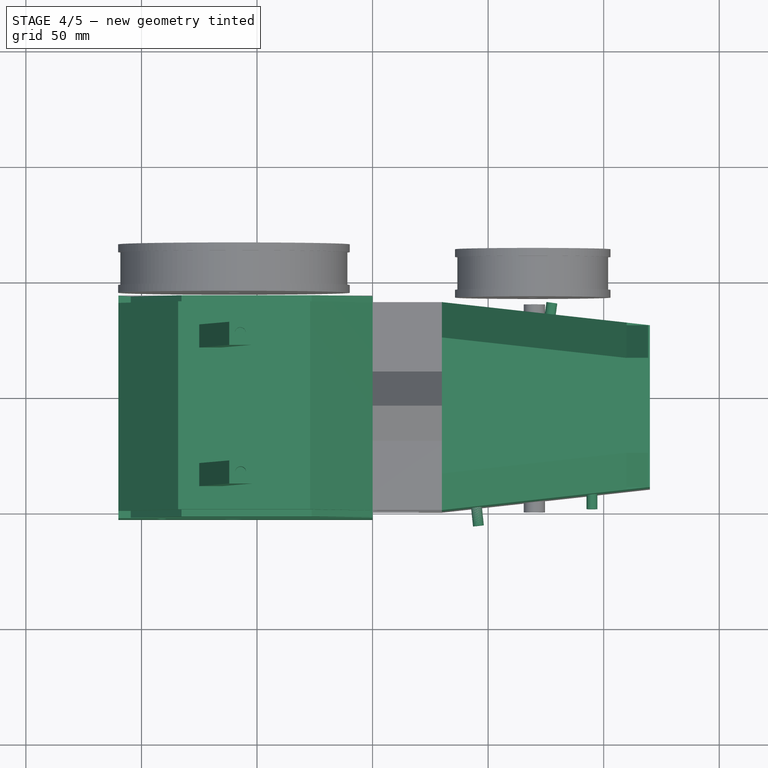
[diagram: stage 4 of 5 — top view after this stage's code; geometry added in this stage tinted green]
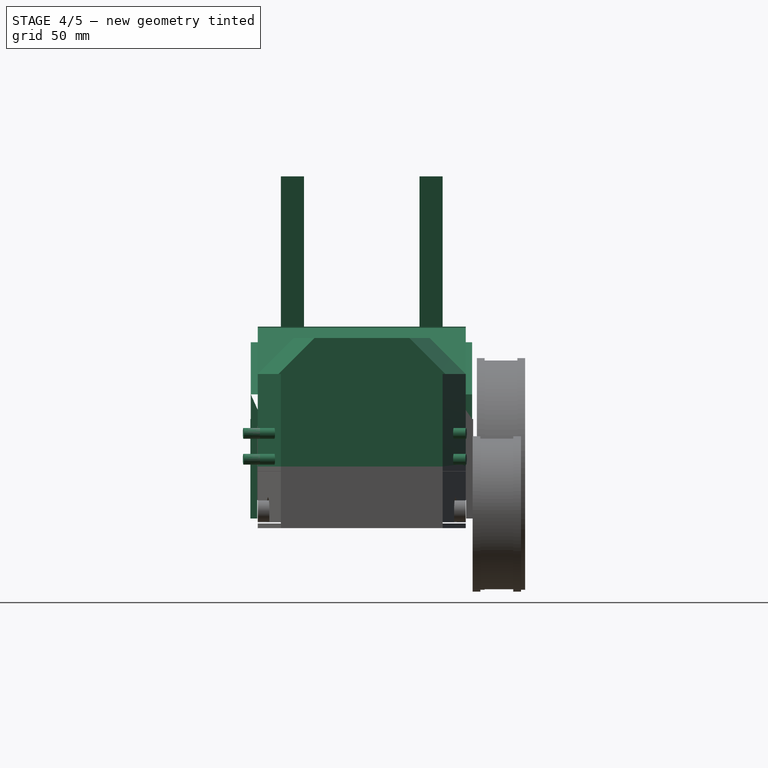
[diagram: stage 4 of 5 — right view after this stage's code; geometry added in this stage tinted green]
FEATURE [Sketcher::SketchObject] Sketch067
  FullyConstrained = false
  Placement = pos=(0,0,0) rot=(0.57735,0.57735,0.57735;2.0944rad)
  sketch-geometry (4):
    g0: LineSegment StartX=10 StartY=70 StartZ=0 EndX=24.4651 EndY=85.518 EndZ=0
    g1: LineSegment StartX=24.4651 StartY=85.518 StartZ=0 EndX=65.6255 EndY=85.518 EndZ=0
    g2: LineSegment StartX=65.6255 StartY=85.518 StartZ=0 EndX=80 EndY=70 EndZ=0
    g3: LineSegment StartX=80 StartY=70 StartZ=0 EndX=10 EndY=70 EndZ=0
  constraints (6):
    c: Coincident(g0,g1)
    c: Horizontal(g1)
    c: Coincident(g1,g2)
    c: Coincident(g2,g3)
    c: Coincident(g3,g0)
    c: Horizontal(g3)
FEATURE [Part::Extrusion] Extrude066
  Base = -> Sketch067
  Dir = (1,0,0)
  DirMode = 2
  FaceMakerClass = Part::FaceMakerBullseye
  LengthFwd = 10
  LengthRev = 0
  Placement = pos=(109.2,0,0) rot=(0,0,1;0rad)
  Solid = true
  Symmetric = false
FEATURE [Sketcher::SketchObject] Sketch020
  FullyConstrained = false
  MapMode = 5
  Placement = pos=(0,0,30) rot=(0,0,1;0rad)
  sketch-geometry (4):
    g0: LineSegment StartX=30 StartY=60 StartZ=0 EndX=110 EndY=50 EndZ=0
    g1: LineSegment StartX=110 StartY=50 StartZ=0 EndX=109.915 EndY=81.1374 EndZ=0
    g2: LineSegment StartX=109.915 StartY=81.1374 StartZ=0 EndX=30 EndY=90 EndZ=0
    g3: LineSegment StartX=30 StartY=90 StartZ=0 EndX=30 EndY=60 EndZ=0
  constraints (3):
    c: Coincident(g0,g1)
    c: Coincident(g1,g2)
    c: Vertical(g3)
FEATURE [Part::Extrusion] Extrude023  label="Carcasa delantera"
  Base = -> Sketch020
  Dir = (0,-1,1)
  DirMode = 0
  FaceMakerClass = Part::FaceMakerBullseye
  LengthFwd = 22
  LengthRev = 0
  Placement = pos=(0,0,40) rot=(0,0,1;0rad)
  Solid = true
  Symmetric = false
FEATURE [Sketcher::SketchObject] Sketch068
  FullyConstrained = false
  MapMode = 5
  Placement = pos=(0,0,30) rot=(0,0,1;0rad)
  sketch-geometry (4):
    g0: LineSegment StartX=110 StartY=8.98712 StartZ=0 EndX=110 EndY=40 EndZ=0
    g1: LineSegment StartX=110 StartY=40 StartZ=0 EndX=30 EndY=30 EndZ=0
    g2: LineSegment StartX=30 StartY=0 StartZ=0 EndX=110 EndY=8.98712 EndZ=0
    g3: LineSegment StartX=30 StartY=0 StartZ=0 EndX=30 EndY=30 EndZ=0
  constraints (5):
    c: Coincident(g1,g0)
    c: PointOnObject(g2,g-1)
    c: Coincident(g2,g0)
    c: Coincident(g3,g1)
    c: Vertical(g3)
FEATURE [Part::Extrusion] Extrude024  label="Carcasa delantera001"
  Base = -> Sketch068
  Dir = (0,1,1)
  DirMode = 0
  FaceMakerClass = Part::FaceMakerBullseye
  LengthFwd = 22
  LengthRev = 0
  Placement = pos=(0,0,40) rot=(0,0,1;0rad)
  Solid = true
  Symmetric = false
FEATURE [Part::MultiFuse] Fusion019
  Refine = true
  Shapes = -> [Extrude023,Extrude024]
FEATURE [Part::MultiFuse] Fusion020
  Refine = true
  Shapes = -> [Fusion019,Extrude066]
FEATURE [Sketcher::SketchObject] Sketch043
  FullyConstrained = false
  sketch-geometry (8):
    g0: LineSegment StartX=30 StartY=0 StartZ=0 EndX=120 EndY=10 EndZ=0
    g1: LineSegment StartX=120 StartY=10 StartZ=0 EndX=120 EndY=80 EndZ=0
    g2: LineSegment StartX=120 StartY=80 StartZ=0 EndX=30 EndY=90 EndZ=0
    g3: LineSegment StartX=30 StartY=90 StartZ=0 EndX=30 EndY=86.4594 EndZ=0
    g4: LineSegment StartX=30 StartY=86.4594 StartZ=0 EndX=118.511 EndY=76.9698 EndZ=0
    g5: LineSegment StartX=118.511 StartY=76.9698 StartZ=0 EndX=118.511 EndY=11.7511 EndZ=0
    g6: LineSegment StartX=118.511 StartY=11.7511 StartZ=0 EndX=30 EndY=2.54547 EndZ=0
    g7: LineSegment StartX=30 StartY=2.54547 StartZ=0 EndX=30 EndY=0 EndZ=0
  constraints (13):
    c: PointOnObject(g0,g-1)
    c: Coincident(g0,g1)
    c: Vertical(g1)
    c: Coincident(g1,g2)
    c: Coincident(g2,g3)
    c: Vertical(g3)
    c: Coincident(g3,g4)
    c: Coincident(g4,g5)
    c: Vertical(g5)
    c: Coincident(g5,g6)
    c: Coincident(g6,g7)
    c: Coincident(g7,g0)
    c: Vertical(g7)
FEATURE [Part::Extrusion] Extrude046  label="Carcasa delantera002"
  Base = -> Sketch043
  Dir = (0,0,1)
  DirMode = 2
  FaceMakerClass = Part::FaceMakerBullseye
  LengthFwd = 40
  LengthRev = 0
  Placement = pos=(0,0,30) rot=(0,0,1;0rad)
  Solid = true
  Symmetric = false
FEATURE [Sketcher::SketchObject] Sketch051
  FullyConstrained = false
  MapMode = 5
  Placement = pos=(-98,-107,0) rot=(0.57735,-0.57735,-0.57735;2.0944rad)
  sketch-geometry (4):
    g0: LineSegment StartX=-140.016 StartY=26.302 StartZ=0 EndX=-130.004 EndY=26.302 EndZ=0
    g1: Circle CenterX=-135.01 CenterY=26.302 CenterZ=0 NormalX=0 NormalY=0 NormalZ=1 AngleXU=0 Radius=2.34
    g2: LineSegment StartX=-140.095 StartY=15.1162 StartZ=0 EndX=-130 EndY=15.1162 EndZ=0
    g3: Circle CenterX=-135.047 CenterY=15.1162 CenterZ=0 NormalX=0 NormalY=0 NormalZ=1 AngleXU=0 Radius=2.34
  constraints (6):
    c: Horizontal(g0)
    c: Symmetric(g0,g0,g1)
    c: Horizontal(g2)
    c: Symmetric(g2,g2,g3)
    c: Equal(g1,g3)
    c: Diameter(g3) = 4.68
FEATURE [Part::Extrusion] Extrude067  label="Tornillos016"
  Base = -> Sketch051
  Dir = (-1,2e-16,2e-16)
  DirMode = 2
  FaceMakerClass = Part::FaceMakerBullseye
  LengthFwd = 20
  LengthRev = 0
  Placement = pos=(66.9,-97,18) rot=(0,0,-1;1.5708rad)
  Solid = true
  Symmetric = false
FEATURE [Sketcher::SketchObject] Sketch052
  FullyConstrained = false
  MapMode = 5
  Placement = pos=(-98,-107,0) rot=(0.57735,-0.57735,-0.57735;2.0944rad)
  sketch-geometry (4):
    g0: LineSegment StartX=-140.016 StartY=26.302 StartZ=0 EndX=-130.004 EndY=26.302 EndZ=0
    g1: Circle CenterX=-135.01 CenterY=26.302 CenterZ=0 NormalX=0 NormalY=0 NormalZ=1 AngleXU=0 Radius=2.34
    g2: LineSegment StartX=-140.095 StartY=15.1162 StartZ=0 EndX=-130 EndY=15.1162 EndZ=0
    g3: Circle CenterX=-135.047 CenterY=15.1162 CenterZ=0 NormalX=0 NormalY=0 NormalZ=1 AngleXU=0 Radius=2.34
  constraints (6):
    c: Horizontal(g0)
    c: Symmetric(g0,g0,g1)
    c: Horizontal(g2)
    c: Symmetric(g2,g2,g3)
    c: Equal(g1,g3)
    c: Diameter(g3) = 4.68
FEATURE [Part::Extrusion] Extrude068  label="Tornillos017"
  Base = -> Sketch052
  Dir = (-1,2e-16,2e-16)
  DirMode = 2
  FaceMakerClass = Part::FaceMakerBullseye
  LengthFwd = 20
  LengthRev = 0
  Placement = pos=(28.1585,-106.603,18) rot=(0,0,-1;1.46608rad)
  Solid = true
  Symmetric = false
FEATURE [Sketcher::SketchObject] Sketch069
  FullyConstrained = false
  MapMode = 5
  Placement = pos=(-98,-107,0) rot=(0.57735,-0.57735,-0.57735;2.0944rad)
  sketch-geometry (4):
    g0: LineSegment StartX=-140.016 StartY=26.302 StartZ=0 EndX=-130.004 EndY=26.302 EndZ=0
    g1: Circle CenterX=-135.01 CenterY=26.302 CenterZ=0 NormalX=0 NormalY=0 NormalZ=1 AngleXU=0 Radius=2.34
    g2: LineSegment StartX=-140.095 StartY=15.1162 StartZ=0 EndX=-130 EndY=15.1162 EndZ=0
    g3: Circle CenterX=-135.047 CenterY=15.1162 CenterZ=0 NormalX=0 NormalY=0 NormalZ=1 AngleXU=0 Radius=2.34
  constraints (6):
    c: Horizontal(g0)
    c: Symmetric(g0,g0,g1)
    c: Horizontal(g2)
    c: Symmetric(g2,g2,g3)
    c: Equal(g1,g3)
    c: Diameter(g3) = 4.68
FEATURE [Part::Extrusion] Extrude069  label="Tornillos018"
  Base = -> Sketch069
  Dir = (-1,2e-16,2e-16)
  DirMode = 2
  FaceMakerClass = Part::FaceMakerBullseye
  LengthFwd = 20
  LengthRev = 0
  Placement = pos=(3.5767,-18.6127,18) rot=(0,0,-1;1.71042rad)
  Solid = true
  Symmetric = false
FEATURE [Part::Cut] Cut038
  Base = -> Extrude046
  Refine = true
  Tool = -> Extrude069
FEATURE [Sketcher::SketchObject] Sketch070
  FullyConstrained = false
  MapMode = 5
  Placement = pos=(-98,-107,0) rot=(0.57735,-0.57735,-0.57735;2.0944rad)
  sketch-geometry (4):
    g0: LineSegment StartX=-140.016 StartY=26.302 StartZ=0 EndX=-130.004 EndY=26.302 EndZ=0
    g1: Circle CenterX=-135.01 CenterY=26.302 CenterZ=0 NormalX=0 NormalY=0 NormalZ=1 AngleXU=0 Radius=2.34
    g2: LineSegment StartX=-140.095 StartY=15.1162 StartZ=0 EndX=-130 EndY=15.1162 EndZ=0
    g3: Circle CenterX=-135.047 CenterY=15.1162 CenterZ=0 NormalX=0 NormalY=0 NormalZ=1 AngleXU=0 Radius=2.34
  constraints (6):
    c: Horizontal(g0)
    c: Symmetric(g0,g0,g1)
    c: Horizontal(g2)
    c: Symmetric(g2,g2,g3)
    c: Equal(g1,g3)
    c: Diameter(g3) = 4.68
FEATURE [Part::Extrusion] Extrude070  label="Tornillos019"
  Base = -> Sketch070
  Dir = (-1,2e-16,2e-16)
  DirMode = 2
  FaceMakerClass = Part::FaceMakerBullseye
  LengthFwd = 20
  LengthRev = 0
  Placement = pos=(33.3838,-22.8018,18) rot=(0,0,-1;1.71042rad)
  Solid = true
  Symmetric = false
FEATURE [Sketcher::SketchObject] Sketch131
  FullyConstrained = false
  MapMode = 5
  Placement = pos=(24,0,148) rot=(1,0,0;3.14159rad)
  sketch-geometry (8):
    g0: LineSegment StartX=-80 StartY=-20 StartZ=0 EndX=-90 EndY=-20 EndZ=0
    g1: LineSegment StartX=-90 StartY=-70 StartZ=0 EndX=-80.3419 EndY=-70 EndZ=0
    g2: LineSegment StartX=-80.3419 StartY=-70 StartZ=0 EndX=-80.3419 EndY=-80 EndZ=0
    g3: LineSegment StartX=-80.3419 StartY=-80 StartZ=0 EndX=-90 EndY=-80 EndZ=0
    g4: LineSegment StartX=-90 StartY=-80 StartZ=0 EndX=-90 EndY=-70 EndZ=0
    g5: LineSegment StartX=-90 StartY=-20 StartZ=0 EndX=-90 EndY=-10 EndZ=0
    g6: LineSegment StartX=-80 StartY=-10 StartZ=0 EndX=-80 EndY=-20 EndZ=0
    g7: LineSegment StartX=-90 StartY=-10 StartZ=0 EndX=-80 EndY=-10 EndZ=0
  constraints (15):
    c: Horizontal(g0)
    c: Coincident(g1,g2)
    c: Coincident(g2,g3)
    c: Coincident(g3,g4)
    c: Coincident(g4,g1)
    c: Horizontal(g1)
    c: Horizontal(g3)
    c: Vertical(g2)
    c: Vertical(g4)
    c: Vertical(g5)
    c: Coincident(g6,g0)
    c: Vertical(g6)
    c: Coincident(g5,g7)
    c: Coincident(g7,g6)
    c: Horizontal(g7)
FEATURE [Part::Extrusion] Extrude155
  Base = -> Sketch131
  Dir = (-0.2,0,-1)
  DirMode = 0
  FaceMakerClass = Part::FaceMakerBullseye
  LengthFwd = 70
  LengthRev = 0
  Placement = pos=(4,0,0) rot=(0,0,1;0rad)
  Solid = true
  Symmetric = false
FEATURE [Sketcher::SketchObject] Sketch132
  FullyConstrained = false
  sketch-geometry (4):
    g0: LineSegment StartX=-102.882 StartY=90 StartZ=0 EndX=-50 EndY=90 EndZ=0
    g1: LineSegment StartX=-50 StartY=90 StartZ=0 EndX=-50 EndY=0 EndZ=0
    g2: LineSegment StartX=-50 StartY=0 StartZ=0 EndX=-102.882 EndY=0 EndZ=0
    g3: LineSegment StartX=-102.882 StartY=0 StartZ=0 EndX=-102.882 EndY=90 EndZ=0
  constraints (9):
    c: Coincident(g0,g1)
    c: Coincident(g1,g2)
    c: Coincident(g2,g3)
    c: Coincident(g3,g0)
    c: Horizontal(g0)
    c: Horizontal(g2)
    c: Vertical(g1)
    c: Vertical(g3)
    c: PointOnObject(g1,g-1)
FEATURE [Part::Extrusion] Extrude029
  Base = -> Sketch132
  Dir = (0,0,1)
  DirMode = 2
  FaceMakerClass = Part::FaceMakerBullseye
  LengthFwd = 8
  LengthRev = 0
  Placement = pos=(23,0,75) rot=(0,0,1;0rad)
  Solid = true
  Symmetric = false
FEATURE [Sketcher::SketchObject] Sketch133
  FullyConstrained = false
  Placement = pos=(0,0,0) rot=(1,0,0;1.5708rad)
  sketch-geometry (4):
    g0: LineSegment StartX=-27.4308 StartY=82.9646 StartZ=0 EndX=1.97129 EndY=53.7327 EndZ=0
    g1: LineSegment StartX=1.97129 StartY=53.7327 StartZ=0 EndX=-7.94359 EndY=53.7327 EndZ=0
    g2: LineSegment StartX=-7.94359 StartY=53.7327 StartZ=0 EndX=-32.0463 EndY=77.3233 EndZ=0
    g3: LineSegment StartX=-32.0463 StartY=77.3233 StartZ=0 EndX=-27.4308 EndY=82.9646 EndZ=0
  constraints (5):
    c: Coincident(g0,g1)
    c: Horizontal(g1)
    c: Coincident(g1,g2)
    c: Coincident(g2,g3)
    c: Coincident(g3,g0)
FEATURE [Part::Extrusion] Extrude030
  Base = -> Sketch133
  Dir = (0,-1,2e-16)
  DirMode = 2
  FaceMakerClass = Part::FaceMakerBullseye
  LengthFwd = 10
  LengthRev = 80
  Placement = pos=(0,10,0) rot=(0,0,1;0rad)
  Solid = true
  Symmetric = false
FEATURE [Part::MultiFuse] Fusion003  label="MODIFICAR"
  Refine = true
  Shapes = -> [Extrude029,Extrude030]
FEATURE [Sketcher::SketchObject] Sketch135
  FullyConstrained = false
  MapMode = 5
  Placement = pos=(0,0,43) rot=(0,0,1;0rad)
  Support = -> [Extrude156]
  sketch-geometry (4):
    g0: LineSegment StartX=-110 StartY=90 StartZ=0 EndX=-100 EndY=90 EndZ=0
    g1: LineSegment StartX=-100 StartY=90 StartZ=0 EndX=-100 EndY=0 EndZ=0
    g2: LineSegment StartX=-100 StartY=0 StartZ=0 EndX=-110 EndY=0 EndZ=0
    g3: LineSegment StartX=-110 StartY=0 StartZ=0 EndX=-110 EndY=90 EndZ=0
  constraints (8):
    c: Coincident(g0,g1)
    c: Coincident(g1,g2)
    c: Coincident(g2,g3)
    c: Coincident(g3,g0)
    c: Horizontal(g0)
    c: Horizontal(g2)
    c: Vertical(g1)
    c: Vertical(g3)
FEATURE [Part::Extrusion] Extrude032  label="Tapa trasera arriba"
  Base = -> Sketch135
  Dir = (0.65,0,1)
  DirMode = 0
  FaceMakerClass = Part::FaceMakerBullseye
  LengthFwd = 47.5
  LengthRev = 0
  Solid = true
  Symmetric = false
FEATURE [Sketcher::SketchObject] Sketch136
  FullyConstrained = false
  sketch-geometry (4):
    g0: LineSegment StartX=-110 StartY=90.8151 StartZ=0 EndX=0 EndY=90.8151 EndZ=0
    g1: LineSegment StartX=0 StartY=90.8151 StartZ=0 EndX=0 EndY=93.8151 EndZ=0
    g2: LineSegment StartX=0 StartY=93.8151 StartZ=0 EndX=-110 EndY=93.8151 EndZ=0
    g3: LineSegment StartX=-110 StartY=93.8151 StartZ=0 EndX=-110 EndY=90.8151 EndZ=0
  constraints (9):
    c: Coincident(g0,g1)
    c: Coincident(g1,g2)
    c: Coincident(g2,g3)
    c: Coincident(g3,g0)
    c: Horizontal(g0)
    c: Horizontal(g2)
    c: Vertical(g1)
    c: Vertical(g3)
    c: DistanceY(g3,g3) = 3
FEATURE [Part::Extrusion] Extrude157  label="Tapa lateral baja002"
  Base = -> Sketch136
  Dir = (0,0,1)
  DirMode = 2
  FaceMakerClass = Part::FaceMakerBullseye
  LengthFwd = 43
  LengthRev = 0
  Placement = pos=(0,-94,0) rot=(0,0,1;0rad)
  Solid = true
  Symmetric = false
FEATURE [Sketcher::SketchObject] Sketch139
  FullyConstrained = false
  Placement = pos=(0,0,0) rot=(1,0,0;1.5708rad)
  sketch-geometry (6):
    g0: LineSegment StartX=-104.692 StartY=42.9568 StartZ=0 EndX=-82.6728 EndY=76.238 EndZ=0
    g1: LineSegment StartX=-82.6728 StartY=76.238 StartZ=0 EndX=-26.3532 EndY=76.238 EndZ=0
    g2: LineSegment StartX=-26.3532 StartY=76.238 StartZ=0 EndX=0 EndY=53.6679 EndZ=0
    g3: LineSegment StartX=0 StartY=53.6679 StartZ=0 EndX=0 EndY=40 EndZ=0
    g4: LineSegment StartX=0 StartY=40 StartZ=0 EndX=-104.974 EndY=40 EndZ=0
    g5: LineSegment StartX=-104.974 StartY=40 StartZ=0 EndX=-104.692 EndY=42.9568 EndZ=0
  constraints (10):
    c: Coincident(g0,g1)
    c: Horizontal(g1)
    c: Coincident(g1,g2)
    c: PointOnObject(g2,g-2)
    c: Coincident(g2,g3)
    c: PointOnObject(g3,g-2)
    c: Coincident(g3,g4)
    c: Horizontal(g4)
    c: Coincident(g4,g5)
    c: Coincident(g5,g0)
FEATURE [Part::Extrusion] Extrude160  label="Tapa lateral arriba003"
  Base = -> Sketch139
  Dir = (0,-1,2e-16)
  DirMode = 2
  FaceMakerClass = Part::FaceMakerBullseye
  LengthFwd = 3
  LengthRev = 0
  Solid = true
  Symmetric = false
FEATURE [Sketcher::SketchObject] Sketch141
  FullyConstrained = false
  MapMode = 5
  Placement = pos=(-101,-107,-1e-15) rot=(0.57735,-0.57735,-0.57735;2.0944rad)
  sketch-geometry (4):
    g0: LineSegment StartX=-140.012 StartY=30 StartZ=0 EndX=-130 EndY=30 EndZ=0
    g1: Circle CenterX=-135.006 CenterY=30 CenterZ=0 NormalX=0 NormalY=0 NormalZ=1 AngleXU=0 Radius=2.34
    g2: LineSegment StartX=-140 StartY=20 StartZ=0 EndX=-130.017 EndY=20 EndZ=0
    g3: Circle CenterX=-135.008 CenterY=20 CenterZ=0 NormalX=0 NormalY=0 NormalZ=1 AngleXU=0 Radius=2.34
  constraints (6):
    c: Horizontal(g0)
    c: Symmetric(g0,g0,g1)
    c: Horizontal(g2)
    c: Symmetric(g2,g2,g3)
    c: Equal(g1,g3)
    c: Diameter(g3) = 4.68
FEATURE [Part::Extrusion] Extrude162  label="Tornillos037"
  Base = -> Sketch141
  Dir = (-1,2e-16,-2e-16)
  DirMode = 2
  FaceMakerClass = Part::FaceMakerBullseye
  LengthFwd = 20
  LengthRev = 0
  Placement = pos=(0,0,-3) rot=(0,0,1;0rad)
  Solid = true
  Symmetric = false
FEATURE [Part::Cut] Cut092
  Base = -> Extrude156
  Refine = true
  Tool = -> Extrude162
FEATURE [Part::Extrusion] Extrude163  label="Tornillos038"
  Base = -> Sketch141
  Dir = (-1,2e-16,-2e-16)
  DirMode = 2
  FaceMakerClass = Part::FaceMakerBullseye
  LengthFwd = 20
  LengthRev = 0
  Placement = pos=(0,34,-3) rot=(0,0,1;0rad)
  Solid = true
  Symmetric = false
FEATURE [Part::Cut] Cut093
  Base = -> Cut092
  Refine = true
  Tool = -> Extrude163
FEATURE [Sketcher::SketchObject] Sketch144
  FullyConstrained = false
  MapMode = 5
  Placement = pos=(-4e-15,-17.4,11) rot=(0,0.707107,0.707107;3.14159rad)
  sketch-geometry (9):
    g0: LineSegment StartX=-1.905 StartY=-8.92242 StartZ=0 EndX=1.905 EndY=-8.92242 EndZ=0
    g1: LineSegment StartX=1.905 StartY=-8.92242 StartZ=0 EndX=1.905 EndY=-13.1324 EndZ=0
    g2: LineSegment StartX=1.905 StartY=-13.1324 StartZ=0 EndX=-1.905 EndY=-13.1324 EndZ=0
    g3: LineSegment StartX=-1.905 StartY=-13.1324 StartZ=0 EndX=-1.905 EndY=-8.92242 EndZ=0
    g4: LineSegment StartX=-1.905 StartY=-8.92242 StartZ=0 EndX=1.905 EndY=-13.1324 EndZ=0
    g5: LineSegment StartX=1.905 StartY=-8.92242 StartZ=0 EndX=-1.905 EndY=-13.1324 EndZ=0
    g6: GeomPoint X=-2.009e-13 Y=-11.0274 Z=0
    g7: ArcOfCircle CenterX=-2.009e-13 CenterY=-11.0274 CenterZ=0 NormalX=0 NormalY=0 NormalZ=1 AngleXU=0 Radius=2.83902 StartAngle=2.30636 EndAngle=3.97682
    g8: ArcOfCircle CenterX=-2.009e-13 CenterY=-11.0274 CenterZ=0 NormalX=0 NormalY=0 NormalZ=1 AngleXU=0 Radius=2.83902 StartAngle=5.44795 EndAngle=7.11842
  constraints (19):
    c: Coincident(g0,g1)
    c: Coincident(g1,g2)
    c: Horizontal(g2)
    c: Coincident(g2,g3)
    c: Coincident(g3,g0)
    c: Coincident(g4,g0)
    c: Coincident(g4,g2)
    c: Coincident(g5,g0)
    c: Coincident(g5,g2)
    c: Symmetric(g4,g4,g6)
    c: Symmetric(g0,g0,g-2)
    c: Coincident(g7,g6)
    c: Coincident(g7,g0)
    c: Coincident(g7,g2)
    c: Coincident(g8,g7)
    c: Coincident(g8,g2)
    c: Coincident(g8,g0)
    c: DistanceX(g0,g0) = 3.81
    c: DistanceY(g1,g1) = 4.21
FEATURE [Part::Extrusion] Extrude165  label="Pieza Clave motor008"
  Base = -> Sketch144
  Dir = (-3e-16,1,-2e-16)
  DirMode = 2
  FaceMakerClass = Part::FaceMakerBullseye
  LengthFwd = 40
  LengthRev = 0
  Placement = pos=(-60.175,0,20.0694) rot=(0,-1,0;1.5708rad)
  Solid = true
  Symmetric = false
FEATURE [Sketcher::SketchObject] Sketch145
  FullyConstrained = false
  MapMode = 5
  Placement = pos=(-98,-107,0) rot=(0.57735,-0.57735,-0.57735;2.0944rad)
  sketch-geometry (4):
    g0: LineSegment StartX=-140.012 StartY=30 StartZ=0 EndX=-130 EndY=30 EndZ=0
    g1: Circle CenterX=-135.006 CenterY=30 CenterZ=0 NormalX=0 NormalY=0 NormalZ=1 AngleXU=0 Radius=2.34
    g2: LineSegment StartX=-140 StartY=20 StartZ=0 EndX=-130.017 EndY=20 EndZ=0
    g3: Circle CenterX=-135.008 CenterY=20 CenterZ=0 NormalX=0 NormalY=0 NormalZ=1 AngleXU=0 Radius=2.34
  constraints (6):
    c: Horizontal(g0)
    c: Symmetric(g0,g0,g1)
    c: Horizontal(g2)
    c: Symmetric(g2,g2,g3)
    c: Equal(g1,g3)
    c: Diameter(g3) = 4.68
FEATURE [Part::Extrusion] Extrude166  label="Tornillos039"
  Base = -> Sketch145
  Dir = (-1,2e-16,2e-16)
  DirMode = 2
  FaceMakerClass = Part::FaceMakerBullseye
  LengthFwd = 20
  LengthRev = 0
  Placement = pos=(-63,105.5,-3.05) rot=(0,0,1;1.5708rad)
  Solid = true
  Symmetric = false
FEATURE [Part::Cut] Cut094
  Base = -> Extrude157
  Refine = true
  Tool = -> Extrude166
FEATURE [Part::Cut] Cut095
  Base = -> Cut094
  Refine = true
  Tool = -> Extrude165
FEATURE [Sketcher::SketchObject] Sketch146
  FullyConstrained = false
  MapMode = 5
  Placement = pos=(-4e-15,-17.4,11) rot=(0,0.707107,0.707107;3.14159rad)
  sketch-geometry (1):
    g0: Circle CenterX=0 CenterY=-11.0274 CenterZ=0 NormalX=0 NormalY=0 NormalZ=1 AngleXU=0 Radius=3.93177
FEATURE [Part::Extrusion] Extrude168  label="Pieza Clave motor009"
  Base = -> Sketch146
  Dir = (0,1,-2e-16)
  DirMode = 2
  FaceMakerClass = Part::FaceMakerBullseye
  LengthFwd = 40
  LengthRev = 0
  Placement = pos=(-60.175,-17.6,20.0694) rot=(0,-1,0;1.5708rad)
  Solid = true
  Symmetric = false
FEATURE [Part::Cut] Cut098
  Base = -> Cut095
  Refine = true
  Tool = -> Extrude168
FEATURE [Part::MultiFuse] Fusion049
  Refine = true
  Shapes = -> [Extrude160,Cut098]
FEATURE [Part::MultiFuse] Fusion051
  Refine = true
  Shapes = -> [Cut093,Fusion050]
FEATURE [Part::MultiFuse] Fusion052
  Refine = true
  Shapes = -> [Fusion049,Fusion051]
FEATURE [Part::MultiFuse] Fusion053
  Refine = true
  Shapes = -> [Fusion052,Extrude032]
FEATURE [Part::MultiFuse] Fusion054
  Refine = true
  Shapes = -> [Fusion053,Fusion003]
FEATURE [Part::MultiFuse] Fusion055
  Placement = pos=(0,0,8.05) rot=(0,0,1;0rad)
  Refine = true
  Shapes = -> [Fusion054,Extrude155]
FEATURE [Part::MultiFuse] Fusion057
  Refine = true
  Shapes = -> [Fusion056,Fusion055]
FEATURE [Sketcher::SketchObject] Sketch158
  FullyConstrained = false
  MapMode = 5
  Placement = pos=(-98,-107,0) rot=(0.57735,-0.57735,-0.57735;2.0944rad)
  sketch-geometry (3):
    g0: LineSegment StartX=-140.012 StartY=30 StartZ=0 EndX=-130 EndY=30 EndZ=0
    g1: Circle CenterX=-135.006 CenterY=30 CenterZ=0 NormalX=0 NormalY=0 NormalZ=1 AngleXU=0 Radius=2.34
    g2: LineSegment StartX=-140 StartY=20 StartZ=0 EndX=-130.017 EndY=20 EndZ=0
  constraints (3):
    c: Horizontal(g0)
    c: Symmetric(g0,g0,g1)
    c: Horizontal(g2)
FEATURE [Part::Extrusion] Extrude179  label="Tornillos045"
  Base = -> Sketch158
  Dir = (-1,2e-16,2e-16)
  DirMode = 2
  FaceMakerClass = Part::FaceMakerBullseye
  LengthFwd = 20
  LengthRev = 0
  Placement = pos=(-27.25,47.3,265.65) rot=(0,-1,0;1.5708rad)
  Solid = true
  Symmetric = false
FEATURE [Part::Cut] Cut104
  Base = -> Fusion057
  Refine = true
  Tool = -> Extrude179
FEATURE [Sketcher::SketchObject] Sketch159
  FullyConstrained = false
  MapMode = 5
  Placement = pos=(-98,-107,0) rot=(0.57735,-0.57735,-0.57735;2.0944rad)
  sketch-geometry (3):
    g0: LineSegment StartX=-140.012 StartY=30 StartZ=0 EndX=-130 EndY=30 EndZ=0
    g1: Circle CenterX=-135.006 CenterY=30 CenterZ=0 NormalX=0 NormalY=0 NormalZ=1 AngleXU=0 Radius=2.34
    g2: LineSegment StartX=-140 StartY=20 StartZ=0 EndX=-130.017 EndY=20 EndZ=0
  constraints (3):
    c: Horizontal(g0)
    c: Symmetric(g0,g0,g1)
    c: Horizontal(g2)
FEATURE [Part::Extrusion] Extrude180  label="Tornillos046"
  Base = -> Sketch159
  Dir = (-1,2e-16,2e-16)
  DirMode = 2
  FaceMakerClass = Part::FaceMakerBullseye
  LengthFwd = 20
  LengthRev = 0
  Placement = pos=(-27.1,-12.9,261.35) rot=(0,-1,0;1.5708rad)
  Solid = true
  Symmetric = false
FEATURE [Part::Cut] Cut105  label="Carcasa trasera"
  Base = -> Cut104
  Placement = pos=(0,0,-0.55) rot=(0,0,1;0rad)
  Refine = true
  Tool = -> Extrude180
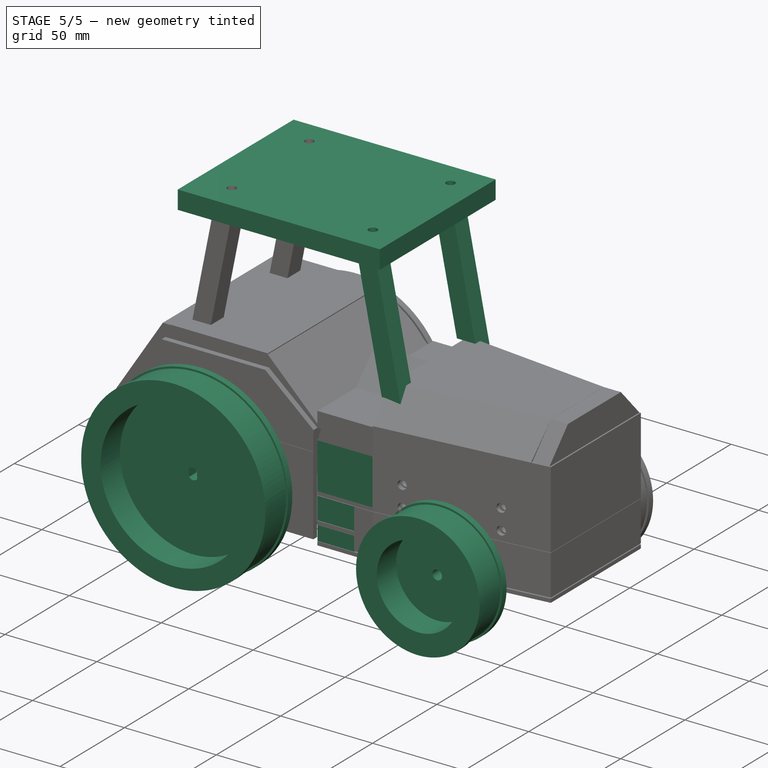
[diagram: stage 5 of 5 — iso view after this stage's code; geometry added in this stage tinted green]
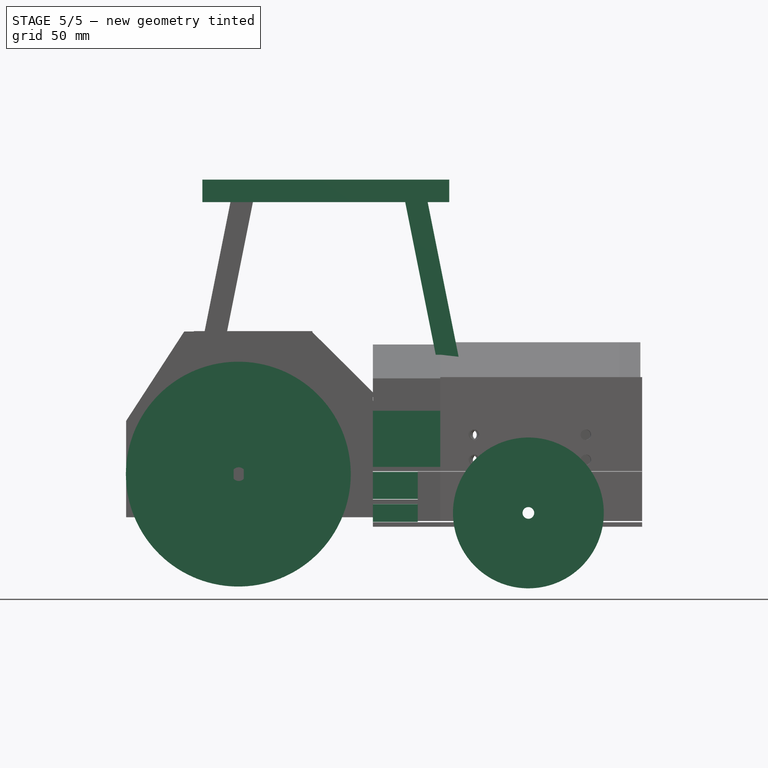
[diagram: stage 5 of 5 — front view after this stage's code; geometry added in this stage tinted green]
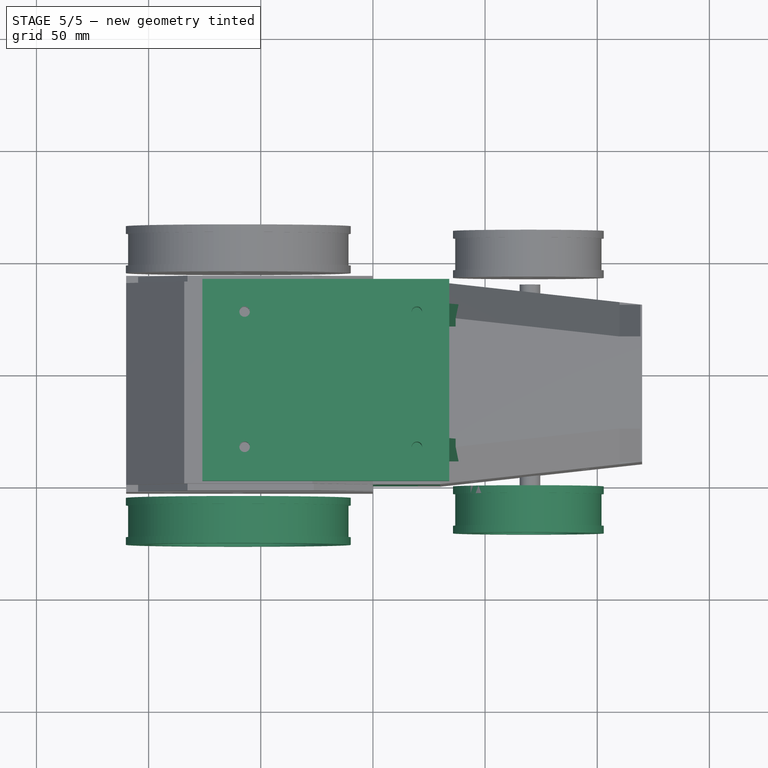
[diagram: stage 5 of 5 — top view after this stage's code; geometry added in this stage tinted green]
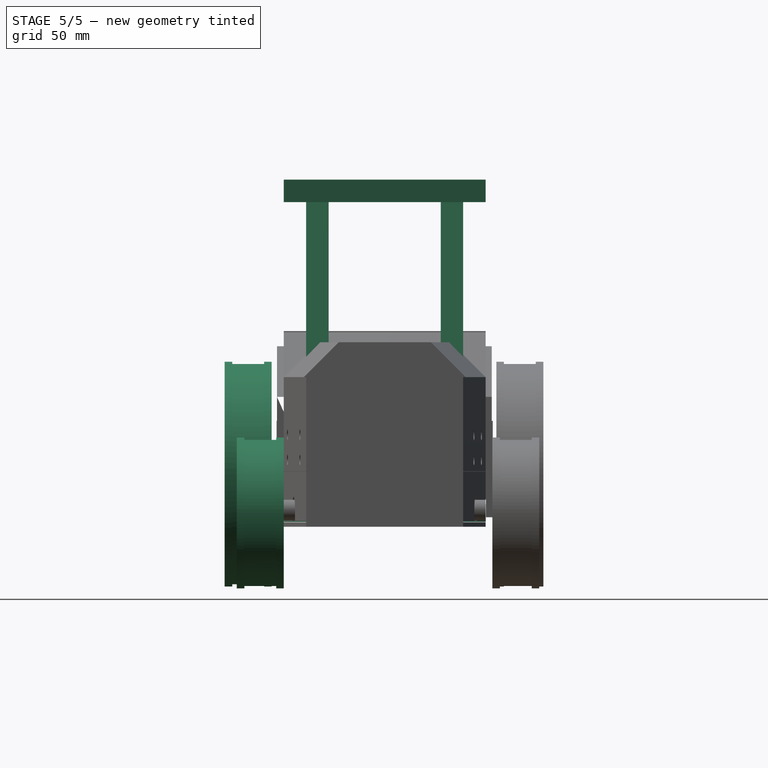
[diagram: stage 5 of 5 — right view after this stage's code; geometry added in this stage tinted green]
FEATURE [Sketcher::SketchObject] Sketch023
  FullyConstrained = false
  sketch-geometry (4):
    g0: LineSegment StartX=-100 StartY=90 StartZ=0 EndX=10 EndY=90 EndZ=0
    g1: LineSegment StartX=10 StartY=90 StartZ=0 EndX=10 EndY=0 EndZ=0
    g2: LineSegment StartX=10 StartY=0 StartZ=0 EndX=-100 EndY=0 EndZ=0
    g3: LineSegment StartX=-100 StartY=0 StartZ=0 EndX=-100 EndY=90 EndZ=0
  constraints (8):
    c: Coincident(g0,g1)
    c: Coincident(g1,g2)
    c: Coincident(g2,g3)
    c: Coincident(g3,g0)
    c: Horizontal(g0)
    c: Horizontal(g2)
    c: Vertical(g1)
    c: Vertical(g3)
FEATURE [Part::Extrusion] Extrude026
  Base = -> Sketch023
  Dir = (0,0,1)
  DirMode = 2
  FaceMakerClass = Part::FaceMakerBullseye
  LengthFwd = 10
  LengthRev = 0
  Placement = pos=(24,0,148) rot=(0,0,1;0rad)
  Solid = true
  Symmetric = false
FEATURE [Sketcher::SketchObject] Sketch053
  FullyConstrained = false
  MapMode = 5
  Placement = pos=(-98,-107,0) rot=(0.57735,-0.57735,-0.57735;2.0944rad)
  sketch-geometry (3):
    g0: LineSegment StartX=-140.012 StartY=30 StartZ=0 EndX=-130 EndY=30 EndZ=0
    g1: Circle CenterX=-135.006 CenterY=30 CenterZ=0 NormalX=0 NormalY=0 NormalZ=1 AngleXU=0 Radius=2.34
    g2: LineSegment StartX=-140 StartY=20 StartZ=0 EndX=-130.017 EndY=20 EndZ=0
  constraints (3):
    c: Horizontal(g0)
    c: Symmetric(g0,g0,g1)
    c: Horizontal(g2)
FEATURE [Part::Extrusion] Extrude055  label="Tornillos011"
  Base = -> Sketch053
  Dir = (-1,2e-16,2e-16)
  DirMode = 2
  FaceMakerClass = Part::FaceMakerBullseye
  LengthFwd = 20
  LengthRev = 0
  Placement = pos=(-27.2,-12.9,257.8) rot=(0,-1,0;1.5708rad)
  Solid = true
  Symmetric = false
FEATURE [Part::Cut] Cut026
  Base = -> Extrude026
  Refine = true
  Tool = -> Extrude055
FEATURE [Sketcher::SketchObject] Sketch054
  FullyConstrained = false
  MapMode = 5
  Placement = pos=(-98,-107,0) rot=(0.57735,-0.57735,-0.57735;2.0944rad)
  sketch-geometry (3):
    g0: LineSegment StartX=-140.012 StartY=30 StartZ=0 EndX=-130 EndY=30 EndZ=0
    g1: Circle CenterX=-135.006 CenterY=30 CenterZ=0 NormalX=0 NormalY=0 NormalZ=1 AngleXU=0 Radius=2.34
    g2: LineSegment StartX=-140 StartY=20 StartZ=0 EndX=-130.017 EndY=20 EndZ=0
  constraints (3):
    c: Horizontal(g0)
    c: Symmetric(g0,g0,g1)
    c: Horizontal(g2)
FEATURE [Part::Extrusion] Extrude056  label="Tornillos012"
  Base = -> Sketch054
  Dir = (-1,2e-16,2e-16)
  DirMode = 2
  FaceMakerClass = Part::FaceMakerBullseye
  LengthFwd = 20
  LengthRev = 0
  Placement = pos=(-27.2,47.4,257.8) rot=(0,-1,0;1.5708rad)
  Solid = true
  Symmetric = false
FEATURE [Sketcher::SketchObject] Sketch055
  FullyConstrained = false
  MapMode = 5
  Placement = pos=(-98,-107,0) rot=(0.57735,-0.57735,-0.57735;2.0944rad)
  sketch-geometry (3):
    g0: LineSegment StartX=-140.012 StartY=30 StartZ=0 EndX=-130 EndY=30 EndZ=0
    g1: Circle CenterX=-135.006 CenterY=30 CenterZ=0 NormalX=0 NormalY=0 NormalZ=1 AngleXU=0 Radius=2.34
    g2: LineSegment StartX=-140 StartY=20 StartZ=0 EndX=-130.017 EndY=20 EndZ=0
  constraints (3):
    c: Horizontal(g0)
    c: Symmetric(g0,g0,g1)
    c: Horizontal(g2)
FEATURE [Part::Extrusion] Extrude057  label="Tornillos013"
  Base = -> Sketch055
  Dir = (-1,2e-16,2e-16)
  DirMode = 2
  FaceMakerClass = Part::FaceMakerBullseye
  LengthFwd = 20
  LengthRev = 0
  Placement = pos=(49.6,-12.9,257.8) rot=(0,-1,0;1.5708rad)
  Solid = true
  Symmetric = false
FEATURE [Sketcher::SketchObject] Sketch056
  FullyConstrained = false
  MapMode = 5
  Placement = pos=(-98,-107,0) rot=(0.57735,-0.57735,-0.57735;2.0944rad)
  sketch-geometry (3):
    g0: LineSegment StartX=-140.012 StartY=30 StartZ=0 EndX=-130 EndY=30 EndZ=0
    g1: Circle CenterX=-135.006 CenterY=30 CenterZ=0 NormalX=0 NormalY=0 NormalZ=1 AngleXU=0 Radius=2.34
    g2: LineSegment StartX=-140 StartY=20 StartZ=0 EndX=-130.017 EndY=20 EndZ=0
  constraints (3):
    c: Horizontal(g0)
    c: Symmetric(g0,g0,g1)
    c: Horizontal(g2)
FEATURE [Part::Extrusion] Extrude058  label="Tornillos014"
  Base = -> Sketch056
  Dir = (-1,2e-16,2e-16)
  DirMode = 2
  FaceMakerClass = Part::FaceMakerBullseye
  LengthFwd = 20
  LengthRev = 0
  Placement = pos=(49.6,47.4,257.8) rot=(0,-1,0;1.5708rad)
  Solid = true
  Symmetric = false
FEATURE [Part::Cut] Cut027
  Base = -> Cut026
  Refine = true
  Tool = -> Extrude058
FEATURE [Part::Cut] Cut028
  Base = -> Cut027
  Refine = true
  Tool = -> Extrude057
FEATURE [Part::Cut] Cut029  label="Techo"
  Base = -> Cut028
  Refine = true
  Tool = -> Extrude056
FEATURE [Sketcher::SketchObject] Sketch009
  FullyConstrained = false
  Placement = pos=(0,0,0) rot=(1,0,0;1.5708rad)
  sketch-geometry (4):
    g0: LineSegment StartX=0 StartY=20.8718 StartZ=0 EndX=0 EndY=8.77665 EndZ=0
    g1: LineSegment StartX=0 StartY=8.77665 StartZ=0 EndX=19.9931 EndY=8.77665 EndZ=0
    g2: LineSegment StartX=19.9931 StartY=20.8718 StartZ=0 EndX=19.9931 EndY=8.77665 EndZ=0
    g3: LineSegment StartX=0 StartY=20.8718 StartZ=0 EndX=19.9931 EndY=20.8718 EndZ=0
  constraints (8):
    c: Vertical(g0)
    c: Coincident(g1,g0)
    c: Horizontal(g1)
    c: Coincident(g2,g1)
    c: Vertical(g2)
    c: Coincident(g3,g0)
    c: Coincident(g3,g2)
    c: Horizontal(g3)
FEATURE [Part::Extrusion] Extrude009  label="Unidor"
  Base = -> Sketch009
  Dir = (0,-1,2e-16)
  DirMode = 2
  FaceMakerClass = Part::FaceMakerBullseye
  LengthFwd = 90
  LengthRev = 0
  Solid = true
  Symmetric = false
FEATURE [Sketcher::SketchObject] Sketch010
  FullyConstrained = false
  MapMode = 5
  Placement = pos=(0,4.6e-15,20.8718) rot=(0,0,1;0rad)
  Support = -> [Extrude009]
  sketch-geometry (4):
    g0: Circle CenterX=10 CenterY=-80 CenterZ=0 NormalX=0 NormalY=0 NormalZ=1 AngleXU=0 Radius=2.9
    g1: Circle CenterX=10 CenterY=-45.0107 CenterZ=0 NormalX=0 NormalY=0 NormalZ=1 AngleXU=0 Radius=2.9
    g2: Circle CenterX=10 CenterY=-10.0214 CenterZ=0 NormalX=0 NormalY=0 NormalZ=1 AngleXU=0 Radius=2.9
    g3: LineSegment StartX=10 StartY=-10.0214 StartZ=0 EndX=10 EndY=-80 EndZ=0
  constraints (7):
    c: Coincident(g3,g2)
    c: Coincident(g3,g0)
    c: Vertical(g3)
    c: Symmetric(g3,g3,g1)
    c: Diameter(g2) = 5.8
    c: Equal(g2,g1)
    c: Equal(g1,g0)
FEATURE [Part::Extrusion] Extrude010  label="Tornillos003"
  Base = -> Sketch010
  Dir = (0,2e-16,1)
  DirMode = 2
  FaceMakerClass = Part::FaceMakerBullseye
  LengthFwd = 20
  LengthRev = 0
  Placement = pos=(0,0,-15) rot=(0,0,1;0rad)
  Solid = true
  Symmetric = false
FEATURE [Part::Cut] Cut003  label="Soporte, Imprimir"
  Base = -> Extrude009
  Placement = pos=(0,90,6.9) rot=(0,0,1;0rad)
  Refine = true
  Tool = -> Extrude010
FEATURE [Sketcher::SketchObject] Sketch057
  FullyConstrained = false
  Placement = pos=(0,0,0) rot=(1,0,0;1.5708rad)
  sketch-geometry (4):
    g0: LineSegment StartX=0.003101 StartY=19.9525 StartZ=0 EndX=0.003101 EndY=12.0825 EndZ=0
    g1: LineSegment StartX=0.003101 StartY=12.0825 StartZ=0 EndX=20.0031 EndY=12.0825 EndZ=0
    g2: LineSegment StartX=20.0031 StartY=19.9525 StartZ=0 EndX=20.0031 EndY=12.0825 EndZ=0
    g3: LineSegment StartX=0.003101 StartY=19.9525 StartZ=0 EndX=20.0031 EndY=19.9525 EndZ=0
  constraints (10):
    c: Vertical(g0)
    c: Coincident(g1,g0)
    c: Horizontal(g1)
    c: Coincident(g2,g1)
    c: Vertical(g2)
    c: Coincident(g3,g0)
    c: Coincident(g3,g2)
    c: Horizontal(g3)
    c: DistanceY(g0,g0) = 7.87
    c: DistanceX(g1,g1) = 20
FEATURE [Part::Extrusion] Extrude059  label="Unidor001"
  Base = -> Sketch057
  Dir = (0,-1,2e-16)
  DirMode = 2
  FaceMakerClass = Part::FaceMakerBullseye
  LengthFwd = 90
  LengthRev = 0
  Solid = true
  Symmetric = false
FEATURE [Sketcher::SketchObject] Sketch058
  FullyConstrained = false
  MapMode = 5
  Placement = pos=(0,4.4e-15,19.9525) rot=(0,0,1;0rad)
  Support = -> [Extrude059]
  sketch-geometry (4):
    g0: Circle CenterX=10 CenterY=-80 CenterZ=0 NormalX=0 NormalY=0 NormalZ=1 AngleXU=0 Radius=2.9
    g1: Circle CenterX=10 CenterY=-45.0107 CenterZ=0 NormalX=0 NormalY=0 NormalZ=1 AngleXU=0 Radius=2.9
    g2: Circle CenterX=10 CenterY=-10.0214 CenterZ=0 NormalX=0 NormalY=0 NormalZ=1 AngleXU=0 Radius=2.9
    g3: LineSegment StartX=10 StartY=-10.0214 StartZ=0 EndX=10 EndY=-80 EndZ=0
  constraints (7):
    c: Coincident(g3,g2)
    c: Coincident(g3,g0)
    c: Vertical(g3)
    c: Symmetric(g3,g3,g1)
    c: Diameter(g2) = 5.8
    c: Equal(g2,g1)
    c: Equal(g1,g0)
FEATURE [Part::Extrusion] Extrude060  label="Tornillos015"
  Base = -> Sketch058
  Dir = (0,2e-16,1)
  DirMode = 2
  FaceMakerClass = Part::FaceMakerBullseye
  LengthFwd = 20
  LengthRev = 0
  Placement = pos=(0,0,-15) rot=(0,0,1;0rad)
  Solid = true
  Symmetric = false
FEATURE [Part::Cut] Cut  label="Soporte 2"
  Base = -> Extrude059
  Placement = pos=(0,90.05,-6.6) rot=(0,0,1;0rad)
  Refine = true
  Tool = -> Extrude060
FEATURE [Sketcher::SketchObject] Sketch
  FullyConstrained = false
  Placement = pos=(0,0,0) rot=(1,0,0;1.5708rad)
  sketch-geometry (8):
    g0: LineSegment StartX=0 StartY=0 StartZ=0 EndX=50.12 EndY=0 EndZ=0
    g1: LineSegment StartX=50.12 StartY=0 StartZ=0 EndX=50.12 EndY=3.35549 EndZ=0
    g2: LineSegment StartX=0 StartY=0 StartZ=0 EndX=0 EndY=20.92 EndZ=0
    g3: LineSegment StartX=0 StartY=20.92 StartZ=0 EndX=50.12 EndY=20.92 EndZ=0
    g4: LineSegment StartX=50.12 StartY=20.92 StartZ=0 EndX=50.12 EndY=17.5645 EndZ=0
    g5: LineSegment StartX=50.12 StartY=17.5645 StartZ=0 EndX=49.1 EndY=17.5645 EndZ=0
    g6: LineSegment StartX=50.12 StartY=3.35549 StartZ=0 EndX=49.1 EndY=3.35549 EndZ=0
    g7: LineSegment StartX=49.1 StartY=3.35549 StartZ=0 EndX=49.1 EndY=17.5645 EndZ=0
  constraints (22):
    c: Coincident(g-1,g0)
    c: PointOnObject(g0,g-1)
    c: Coincident(g0,g1)
    c: Vertical(g1)
    c: DistanceX(g0,g0) = 50.12
    c: Coincident(g0,g2)
    c: PointOnObject(g2,g-2)
    c: Coincident(g2,g3)
    c: Horizontal(g3)
    c: Equal(g0,g3)
    c: Coincident(g4,g3)
    c: Vertical(g4)
    c: Equal(g1,g4)
    c: Coincident(g5,g4)
    c: Horizontal(g5)
    c: Coincident(g6,g1)
    c: Horizontal(g6)
    c: Coincident(g7,g6)
    c: Coincident(g7,g5)
    c: Vertical(g7)
    c: DistanceY(g2,g2) = 20.92
    c: DistanceX(g5,g5) = 1.02
FEATURE [Part::Revolution] Revolve
  Angle = 360
  Axis = (0,0,1)
  Base = (0,0,0)
  FaceMakerClass = Part::FaceMakerBullseye
  Solid = true
  Source = -> Sketch
  Symmetric = false
FEATURE [Sketcher::SketchObject] Sketch001
  FullyConstrained = false
  MapMode = 5
  Placement = pos=(0,0,20.92) rot=(0,0,1;0rad)
  Support = -> [Revolve]
  sketch-geometry (1):
    g0: Circle CenterX=0 CenterY=0 CenterZ=0 NormalX=0 NormalY=0 NormalZ=1 AngleXU=0 Radius=39.5662
  constraints (1):
    c: Coincident(g0,g-1)
FEATURE [Part::Extrusion] Extrude
  Base = -> Sketch001
  Dir = (0,0,1)
  DirMode = 2
  FaceMakerClass = Part::FaceMakerBullseye
  LengthFwd = 20
  LengthRev = 0
  Placement = pos=(0,0,-15.1) rot=(0,0,1;0rad)
  Solid = true
  Symmetric = false
FEATURE [Part::Cut] Cut030
  Base = -> Revolve
  Refine = true
  Tool = -> Extrude
FEATURE [Sketcher::SketchObject] Sketch021
  FullyConstrained = false
  MapMode = 5
  Placement = pos=(-4e-15,-17.4,11) rot=(0,0.707107,0.707107;3.14159rad)
  sketch-geometry (9):
    g0: LineSegment StartX=-2.055 StartY=-8.92183 StartZ=0 EndX=2.055 EndY=-8.92183 EndZ=0
    g1: LineSegment StartX=2.055 StartY=-8.92183 StartZ=0 EndX=2.055 EndY=-13.4318 EndZ=0
    g2: LineSegment StartX=2.055 StartY=-13.4318 StartZ=0 EndX=-2.055 EndY=-13.4318 EndZ=0
    g3: LineSegment StartX=-2.055 StartY=-13.4318 StartZ=0 EndX=-2.055 EndY=-8.92183 EndZ=0
    g4: LineSegment StartX=-2.055 StartY=-8.92183 StartZ=0 EndX=2.055 EndY=-13.4318 EndZ=0
    g5: LineSegment StartX=2.055 StartY=-8.92183 StartZ=0 EndX=-2.055 EndY=-13.4318 EndZ=0
    g6: GeomPoint X=-1.34498e-11 Y=-11.1768 Z=0
    g7: ArcOfCircle CenterX=-1.34498e-11 CenterY=-11.1768 CenterZ=0 NormalX=0 NormalY=0 NormalZ=1 AngleXU=0 Radius=3.05091 StartAngle=2.30982 EndAngle=3.97336
    g8: ArcOfCircle CenterX=-1.34498e-11 CenterY=-11.1768 CenterZ=0 NormalX=0 NormalY=0 NormalZ=1 AngleXU=0 Radius=3.05091 StartAngle=5.45142 EndAngle=7.11495
  constraints (19):
    c: Coincident(g0,g1)
    c: Coincident(g1,g2)
    c: Horizontal(g2)
    c: Coincident(g2,g3)
    c: Coincident(g3,g0)
    c: Coincident(g4,g0)
    c: Coincident(g4,g2)
    c: Coincident(g5,g0)
    c: Coincident(g5,g2)
    c: Symmetric(g4,g4,g6)
    c: Symmetric(g0,g0,g-2)
    c: Coincident(g7,g6)
    c: Coincident(g7,g0)
    c: Coincident(g7,g2)
    c: Coincident(g8,g7)
    c: Coincident(g8,g2)
    c: Coincident(g8,g0)
    c: DistanceX(g0,g0) = 4.11
    c: DistanceY(g1,g1) = 4.51
FEATURE [Part::Extrusion] Extrude019  label="Pieza Clave motor003"
  Base = -> Sketch021
  Dir = (0,1,-2e-16)
  DirMode = 2
  FaceMakerClass = Part::FaceMakerBullseye
  LengthFwd = 40
  LengthRev = 0
  Placement = pos=(-3e-15,-1.8e-14,13.85) rot=(0.57735,0.57735,-0.57735;4.18879rad)
  Solid = true
  Symmetric = false
FEATURE [Part::Cut] Cut001  label="Rueda trasera"
  Base = -> Cut030
  Placement = pos=(-60,-5.4,26.75) rot=(1,0,0;1.5708rad)
  Refine = true
  Tool = -> Extrude019
FEATURE [Sketcher::SketchObject] Sketch064
  FullyConstrained = false
  Placement = pos=(0,0,0) rot=(1,0,0;1.5708rad)
  sketch-geometry (8):
    g0: LineSegment StartX=0 StartY=0 StartZ=0 EndX=33.62 EndY=0 EndZ=0
    g1: LineSegment StartX=33.62 StartY=0 StartZ=0 EndX=33.62 EndY=3.3555 EndZ=0
    g2: LineSegment StartX=0 StartY=0 StartZ=0 EndX=0 EndY=20.92 EndZ=0
    g3: LineSegment StartX=0 StartY=20.92 StartZ=0 EndX=33.62 EndY=20.92 EndZ=0
    g4: LineSegment StartX=33.62 StartY=20.92 StartZ=0 EndX=33.62 EndY=17.5645 EndZ=0
    g5: LineSegment StartX=33.62 StartY=17.5645 StartZ=0 EndX=32.6 EndY=17.5645 EndZ=0
    g6: LineSegment StartX=33.62 StartY=3.3555 StartZ=0 EndX=32.6 EndY=3.3555 EndZ=0
    g7: LineSegment StartX=32.6 StartY=3.3555 StartZ=0 EndX=32.6 EndY=17.5645 EndZ=0
  constraints (22):
    c: Coincident(g-1,g0)
    c: PointOnObject(g0,g-1)
    c: Coincident(g0,g1)
    c: Vertical(g1)
    c: DistanceX(g0,g0) = 33.62
    c: Coincident(g0,g2)
    c: PointOnObject(g2,g-2)
    c: Coincident(g2,g3)
    c: Horizontal(g3)
    c: Equal(g0,g3)
    c: Coincident(g4,g3)
    c: Vertical(g4)
    c: Equal(g1,g4)
    c: Coincident(g5,g4)
    c: Horizontal(g5)
    c: Coincident(g6,g1)
    c: Horizontal(g6)
    c: Coincident(g7,g6)
    c: Coincident(g7,g5)
    c: Vertical(g7)
    c: DistanceY(g2,g2) = 20.92
    c: DistanceX(g5,g5) = 1.02
FEATURE [Part::Revolution] Revolve003
  Angle = 360
  Axis = (0,0,1)
  Base = (0,0,0)
  FaceMakerClass = Part::FaceMakerBullseye
  Solid = true
  Source = -> Sketch064
  Symmetric = false
FEATURE [Sketcher::SketchObject] Sketch065
  FullyConstrained = false
  MapMode = 5
  Placement = pos=(0,0,20.92) rot=(0,0,1;0rad)
  Support = -> [Revolve003]
  sketch-geometry (1):
    g0: Circle CenterX=0 CenterY=0 CenterZ=0 NormalX=0 NormalY=0 NormalZ=1 AngleXU=0 Radius=22.3607
  constraints (1):
    c: Coincident(g0,g-1)
FEATURE [Part::Extrusion] Extrude064
  Base = -> Sketch065
  Dir = (0,0,1)
  DirMode = 2
  FaceMakerClass = Part::FaceMakerBullseye
  LengthFwd = 20
  LengthRev = 0
  Placement = pos=(0,0,-15.1) rot=(0,0,1;0rad)
  Solid = true
  Symmetric = false
FEATURE [Part::Cut] Cut035
  Base = -> Revolve003
  Refine = true
  Tool = -> Extrude064
FEATURE [Sketcher::SketchObject] Sketch066
  FullyConstrained = false
  MapMode = 5
  Placement = pos=(0,0,5.82) rot=(0,0,1;0rad)
  Support = -> [Cut035]
  sketch-geometry (1):
    g0: Circle CenterX=0 CenterY=0 CenterZ=0 NormalX=0 NormalY=0 NormalZ=1 AngleXU=0 Radius=2.6
  constraints (2):
    c: PointOnObject(g0,g-1)
    c: Diameter(g0) = 5.2
FEATURE [Part::Extrusion] Extrude065
  Base = -> Sketch066
  Dir = (0,0,1)
  DirMode = 2
  FaceMakerClass = Part::FaceMakerBullseye
  LengthFwd = 10
  LengthRev = 0
  Placement = pos=(0,0,-7.5) rot=(0,0,1;0rad)
  Solid = true
  Symmetric = false
FEATURE [Part::Cut] Cut036  label="Rueda delantera001"
  Base = -> Cut035
  Placement = pos=(69.3,2.1e-15,9.45) rot=(1,0,0;1.5708rad)
  Refine = true
  Tool = -> Extrude065
FEATURE [Sketcher::SketchObject] Sketch022
  FullyConstrained = false
  MapMode = 5
  Placement = pos=(0,0,30) rot=(0,0,1;0rad)
  sketch-geometry (8):
    g0: LineSegment StartX=10 StartY=80 StartZ=0 EndX=20 EndY=80 EndZ=0
    g1: LineSegment StartX=20 StartY=80 StartZ=0 EndX=20 EndY=70 EndZ=0
    g2: LineSegment StartX=20 StartY=70 StartZ=0 EndX=10 EndY=70 EndZ=0
    g3: LineSegment StartX=10 StartY=70 StartZ=0 EndX=10 EndY=80 EndZ=0
    g4: LineSegment StartX=10 StartY=20 StartZ=0 EndX=20 EndY=20 EndZ=0
    g5: LineSegment StartX=20 StartY=20 StartZ=0 EndX=20 EndY=10 EndZ=0
    g6: LineSegment StartX=20 StartY=10 StartZ=0 EndX=10 EndY=10 EndZ=0
    g7: LineSegment StartX=10 StartY=10 StartZ=0 EndX=10 EndY=20 EndZ=0
  constraints (16):
    c: Coincident(g0,g1)
    c: Coincident(g1,g2)
    c: Coincident(g2,g3)
    c: Coincident(g3,g0)
    c: Horizontal(g0)
    c: Horizontal(g2)
    c: Vertical(g1)
    c: Vertical(g3)
    c: Coincident(g4,g5)
    c: Coincident(g5,g6)
    c: Coincident(g6,g7)
    c: Coincident(g7,g4)
    c: Horizontal(g4)
    c: Horizontal(g6)
    c: Vertical(g5)
    c: Vertical(g7)
FEATURE [Part::Extrusion] Extrude025
  Base = -> Sketch022
  Dir = (-0.2,0,1)
  DirMode = 0
  FaceMakerClass = Part::FaceMakerBullseye
  LengthFwd = 80
  LengthRev = 0
  Placement = pos=(20,0,40) rot=(0,0,1;0rad)
  Solid = true
  Symmetric = false
FEATURE [Sketcher::SketchObject] Sketch049
  FullyConstrained = false
  MapMode = 5
  Placement = pos=(0,0,30) rot=(0,0,1;0rad)
  sketch-geometry (8):
    g0: LineSegment StartX=0 StartY=90 StartZ=0 EndX=30 EndY=90 EndZ=0
    g1: LineSegment StartX=30 StartY=90 StartZ=0 EndX=30 EndY=87.7792 EndZ=0
    g2: LineSegment StartX=30 StartY=87.7792 StartZ=0 EndX=0 EndY=87.7792 EndZ=0
    g3: LineSegment StartX=0 StartY=87.7792 StartZ=0 EndX=0 EndY=90 EndZ=0
    g4: LineSegment StartX=0 StartY=0 StartZ=0 EndX=0 EndY=2.31108 EndZ=0
    g5: LineSegment StartX=0 StartY=2.31108 StartZ=0 EndX=30 EndY=2.31108 EndZ=0
    g6: LineSegment StartX=30 StartY=2.31108 StartZ=0 EndX=30 EndY=0 EndZ=0
    g7: LineSegment StartX=30 StartY=0 StartZ=0 EndX=0 EndY=0 EndZ=0
  constraints (18):
    c: PointOnObject(g0,g-2)
    c: Horizontal(g0)
    c: Coincident(g0,g1)
    c: Vertical(g1)
    c: Coincident(g1,g2)
    c: PointOnObject(g2,g-2)
    c: Horizontal(g2)
    c: Coincident(g2,g3)
    c: Coincident(g3,g0)
    c: Coincident(g-1,g4)
    c: PointOnObject(g4,g-2)
    c: Coincident(g4,g5)
    c: Horizontal(g5)
    c: Coincident(g5,g6)
    c: PointOnObject(g6,g-1)
    c: Vertical(g6)
    c: Coincident(g6,g7)
    c: Coincident(g7,g4)
FEATURE [Part::Extrusion] Extrude051
  Base = -> Sketch049
  Dir = (0,0,1)
  DirMode = 2
  FaceMakerClass = Part::FaceMakerBullseye
  LengthFwd = 25
  LengthRev = 0
  Solid = true
  Symmetric = false
FEATURE [Part::Cut] Cut039
  Base = -> Cut038
  Refine = true
  Tool = -> Extrude070
FEATURE [Part::Cut] Cut040
  Base = -> Cut039
  Refine = true
  Tool = -> Extrude067
FEATURE [Part::Cut] Cut041
  Base = -> Cut040
  Refine = true
  Tool = -> Extrude068
FEATURE [Part::MultiFuse] Fusion021  label="Carcasa"
  Refine = true
  Shapes = -> [Fusion020,Cut041]
FEATURE [Part::MultiFuse] Fusion  label="Carcasa001"
  Refine = true
  Shapes = -> [Fusion021,Extrude051]
FEATURE [Sketcher::SketchObject] Sketch071
  FullyConstrained = false
  MapMode = 5
  Placement = pos=(30,0,30) rot=(0.57735,-0.57735,-0.57735;2.0944rad)
  sketch-geometry (6):
    g0: LineSegment StartX=0 StartY=25.2875 StartZ=0 EndX=0 EndY=40 EndZ=0
    g1: LineSegment StartX=0 StartY=40 StartZ=0 EndX=-15.6254 EndY=55.5589 EndZ=0
    g2: LineSegment StartX=-15.6254 StartY=55.5589 StartZ=0 EndX=-74.4647 EndY=55.5589 EndZ=0
    g3: LineSegment StartX=-74.4647 StartY=55.5589 StartZ=0 EndX=-90 EndY=40 EndZ=0
    g4: LineSegment StartX=-90 StartY=40 StartZ=0 EndX=-90 EndY=25.2875 EndZ=0
    g5: LineSegment StartX=-90 StartY=25.2875 StartZ=0 EndX=0 EndY=25.2875 EndZ=0
  constraints (11):
    c: PointOnObject(g0,g-2)
    c: PointOnObject(g0,g-2)
    c: Coincident(g0,g1)
    c: Coincident(g1,g2)
    c: Horizontal(g2)
    c: Coincident(g2,g3)
    c: Coincident(g3,g4)
    c: Vertical(g4)
    c: Coincident(g5,g4)
    c: Coincident(g5,g0)
    c: Horizontal(g5)
FEATURE [Part::Extrusion] Extrude053
  Base = -> Sketch071
  Dir = (-1,0,0)
  DirMode = 2
  FaceMakerClass = Part::FaceMakerBullseye
  LengthFwd = 10
  LengthRev = 0
  Solid = true
  Symmetric = false
FEATURE [Part::Cut] Cut037
  Base = -> Extrude025
  Refine = true
  Tool = -> Extrude053
FEATURE [Sketcher::SketchObject] Sketch072
  FullyConstrained = false
  MapMode = 5
  Placement = pos=(-98,-107,0) rot=(0.57735,-0.57735,-0.57735;2.0944rad)
  sketch-geometry (3):
    g0: LineSegment StartX=-140.012 StartY=30 StartZ=0 EndX=-130 EndY=30 EndZ=0
    g1: Circle CenterX=-135.006 CenterY=30 CenterZ=0 NormalX=0 NormalY=0 NormalZ=1 AngleXU=0 Radius=2.34
    g2: LineSegment StartX=-140 StartY=20 StartZ=0 EndX=-130.017 EndY=20 EndZ=0
  constraints (3):
    c: Horizontal(g0)
    c: Symmetric(g0,g0,g1)
    c: Horizontal(g2)
FEATURE [Part::Extrusion] Extrude071  label="Tornillos020"
  Base = -> Sketch072
  Dir = (-1,2e-16,2e-16)
  DirMode = 2
  FaceMakerClass = Part::FaceMakerBullseye
  LengthFwd = 20
  LengthRev = 0
  Placement = pos=(49.6,47.3,253.75) rot=(0,-1,0;1.5708rad)
  Solid = true
  Symmetric = false
FEATURE [Sketcher::SketchObject] Sketch073
  FullyConstrained = false
  MapMode = 5
  Placement = pos=(-98,-107,0) rot=(0.57735,-0.57735,-0.57735;2.0944rad)
  sketch-geometry (3):
    g0: LineSegment StartX=-140.012 StartY=30 StartZ=0 EndX=-130 EndY=30 EndZ=0
    g1: Circle CenterX=-135.006 CenterY=30 CenterZ=0 NormalX=0 NormalY=0 NormalZ=1 AngleXU=0 Radius=2.34
    g2: LineSegment StartX=-140 StartY=20 StartZ=0 EndX=-130.017 EndY=20 EndZ=0
  constraints (3):
    c: Horizontal(g0)
    c: Symmetric(g0,g0,g1)
    c: Horizontal(g2)
FEATURE [Part::Extrusion] Extrude072  label="Tornillos021"
  Base = -> Sketch073
  Dir = (-1,2e-16,2e-16)
  DirMode = 2
  FaceMakerClass = Part::FaceMakerBullseye
  LengthFwd = 20
  LengthRev = 0
  Placement = pos=(49.6,-12.9,253.6) rot=(0,-1,0;1.5708rad)
  Solid = true
  Symmetric = false
FEATURE [Part::Cut] Cut042
  Base = -> Cut037
  Refine = true
  Tool = -> Extrude072
FEATURE [Part::Cut] Cut043
  Base = -> Cut042
  Refine = true
  Tool = -> Extrude071
FEATURE [Part::MultiFuse] Fusion022  label="Carcasa delantera003"
  Refine = true
  Shapes = -> [Fusion,Cut043]
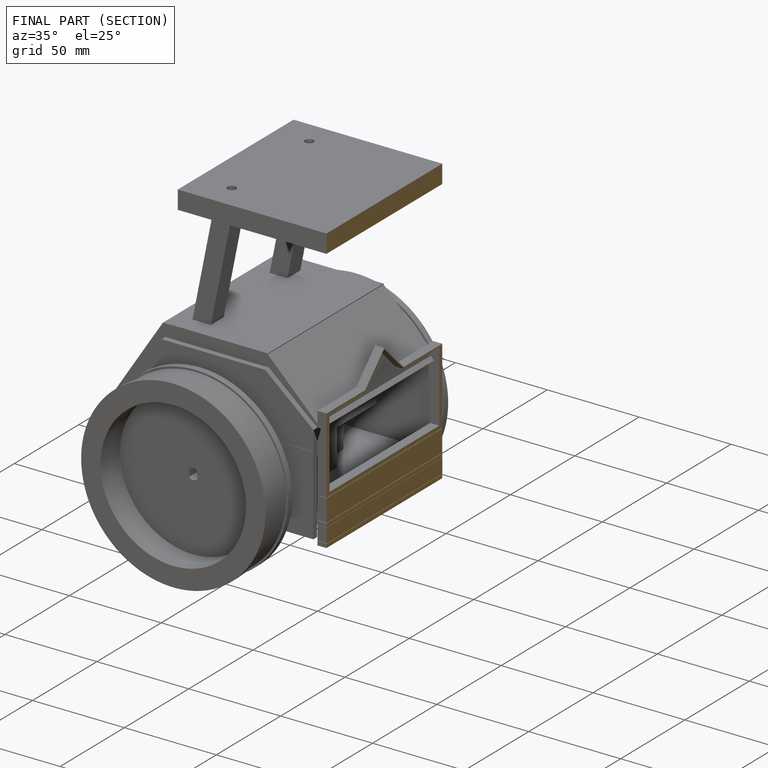
[diagram: finished part — half-section view (interior)]
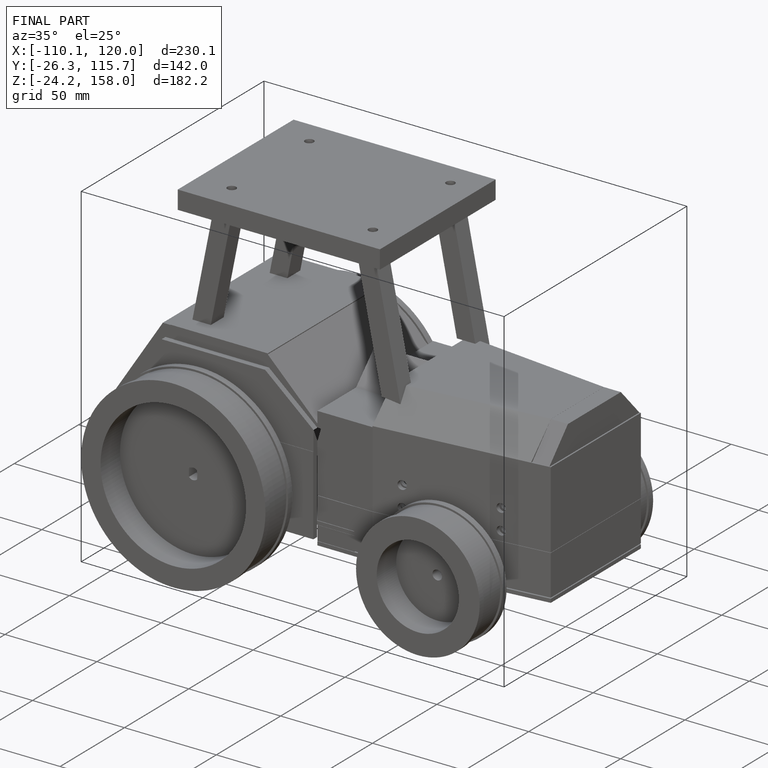
[diagram: finished part — iso view with bounding-box wireframe]
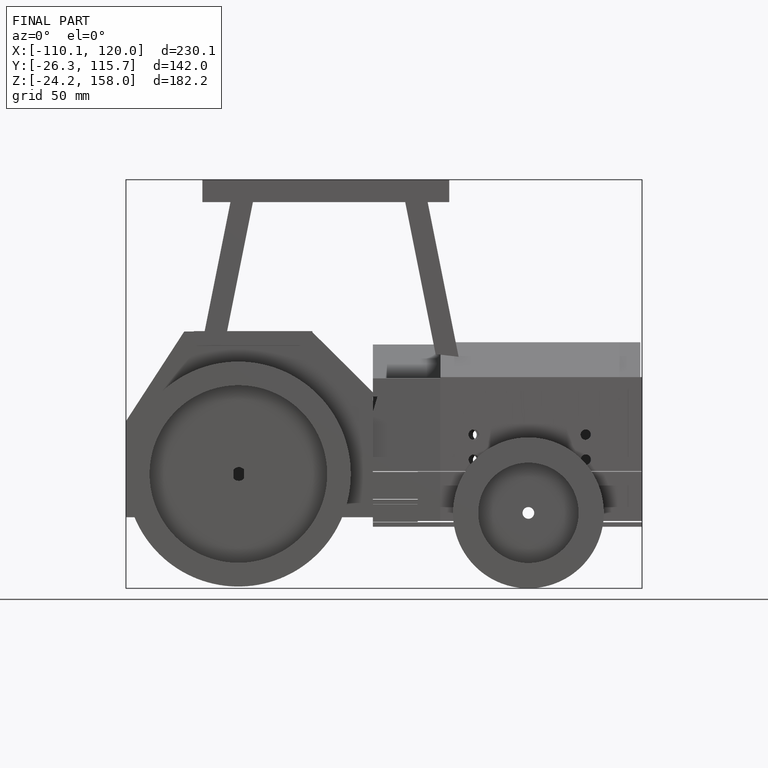
[diagram: finished part — front view with bounding-box wireframe]
